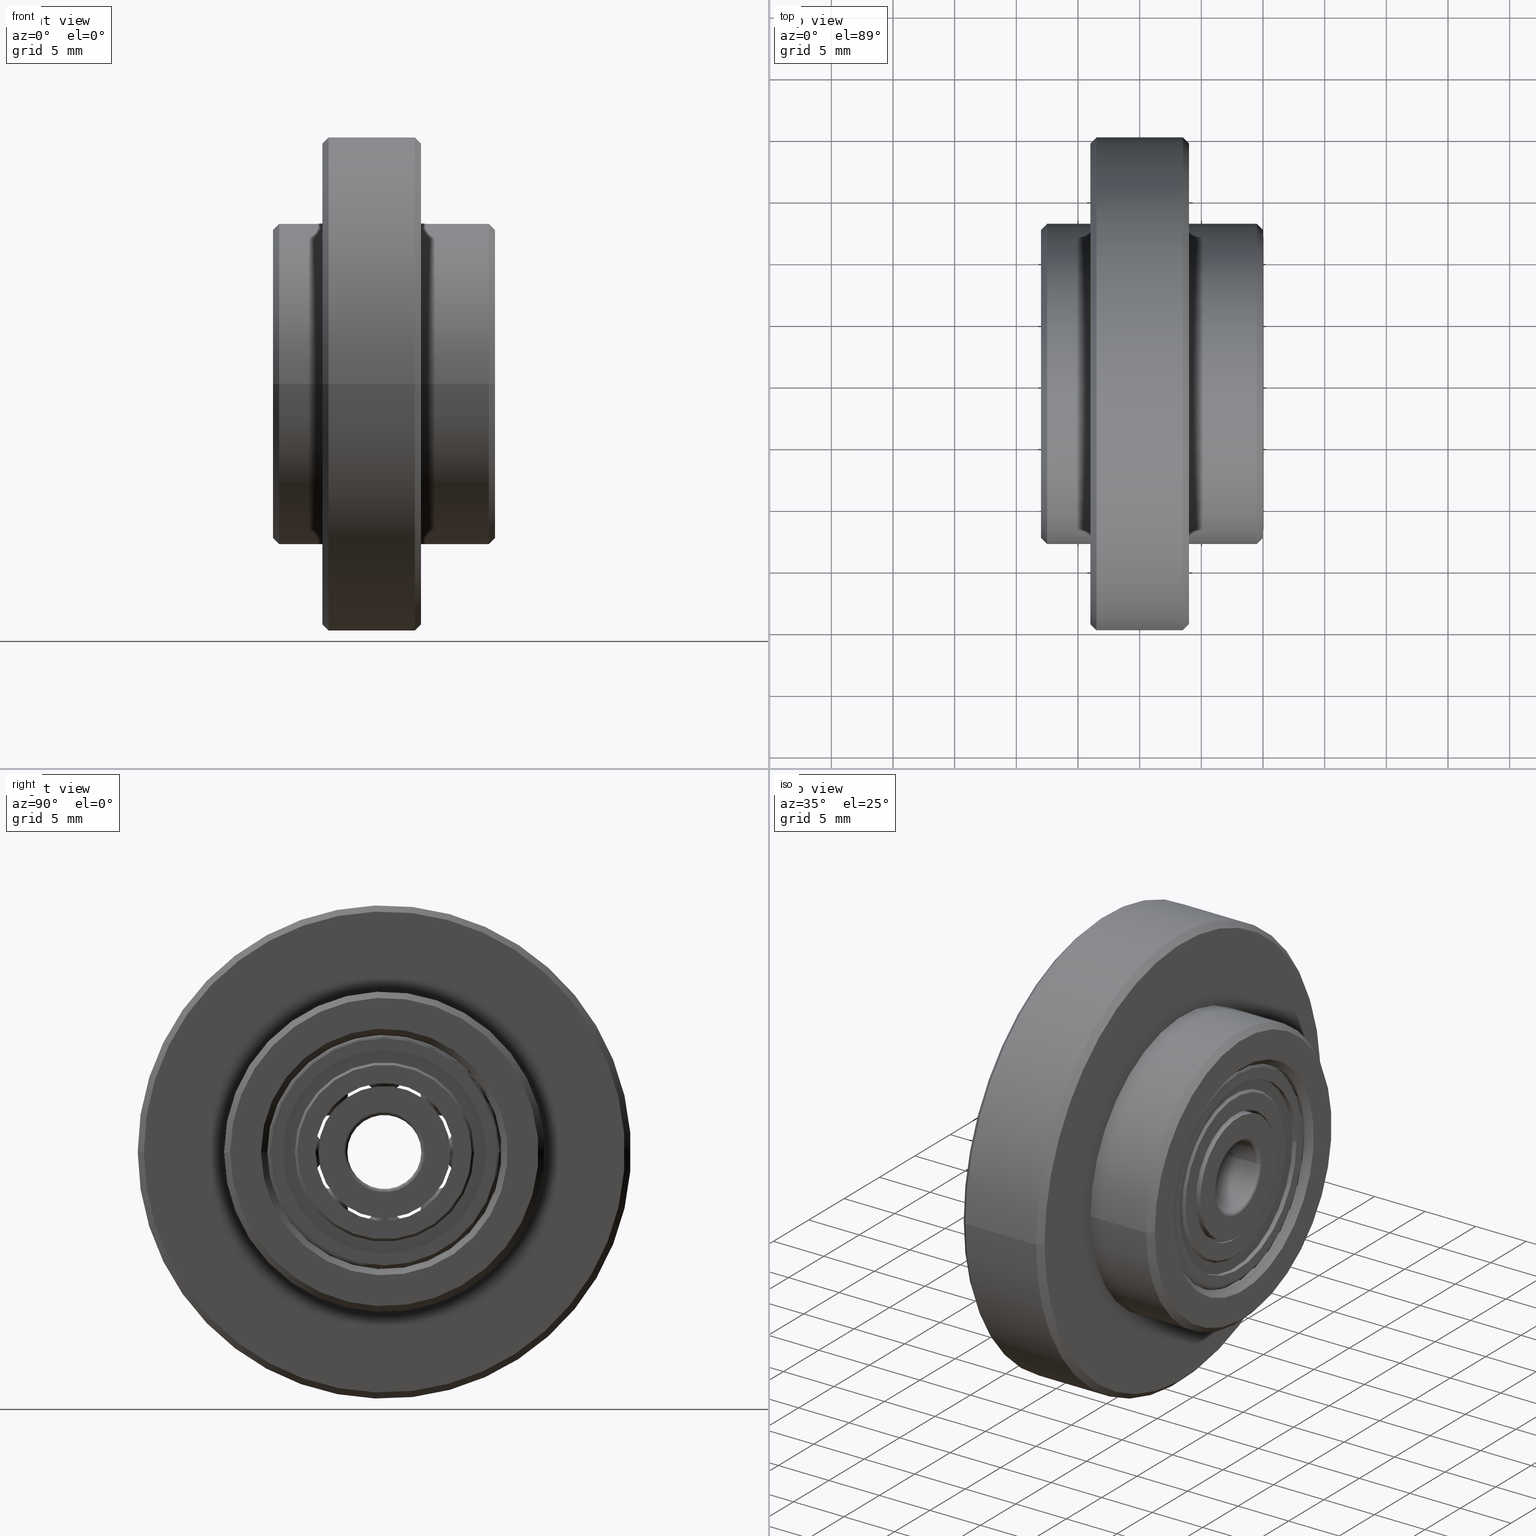
[diagram: canonical four-view strip — front | top / right | iso, engineering-drawing reading convention]
A machine part, canonical four-view strip (front | top / right | iso — engineering-drawing reading convention). The complete STEP part file that produces these views, byte-faithful:
ISO-10303-21;
HEADER;
/* Generated by software containing ST-Developer
 * from STEP Tools, Inc. (www.steptools.com) 
 */

FILE_DESCRIPTION(
/* description */ ('RUOTA NERA D.40 X SCORR. C/CUS.'),
/* implementation_level */ '2;1');

FILE_NAME(
/* name */ 'C:\\Users\\srubbiani.DR\\Desktop\\LAURA\\24.180.00.stp',
/* time_stamp */ '2014-08-05T14:07:43+02:00',
/* author */ ('srubbiani'),
/* organization */ (''),
/* preprocessor_version */ 'ST-DEVELOPER v15.2',
/* originating_system */ 'Autodesk Inventor 2014',
/* authorisation */ '');

FILE_SCHEMA (('AUTOMOTIVE_DESIGN { 1 0 10303 214 3 1 1 }'));
ENDSEC;

DATA;
#10=MECHANICAL_DESIGN_GEOMETRIC_PRESENTATION_REPRESENTATION('',(#47,#48,
#49,#50,#51,#52,#53,#54,#55,#56,#57,#58,#59,#60,#61,#62,#63,#64,#65,#66,
#67,#68,#69,#70,#46,#45),#1432);
#11=ITEM_DEFINED_TRANSFORMATION($,$,#799,#934);
#12=ITEM_DEFINED_TRANSFORMATION($,$,#836,#935);
#13=ITEM_DEFINED_TRANSFORMATION($,$,#836,#936);
#14=(
REPRESENTATION_RELATIONSHIP($,$,#1448,#1450)
REPRESENTATION_RELATIONSHIP_WITH_TRANSFORMATION(#11)
SHAPE_REPRESENTATION_RELATIONSHIP()
);
#15=(
REPRESENTATION_RELATIONSHIP($,$,#1449,#1450)
REPRESENTATION_RELATIONSHIP_WITH_TRANSFORMATION(#12)
SHAPE_REPRESENTATION_RELATIONSHIP()
);
#16=(
REPRESENTATION_RELATIONSHIP($,$,#1449,#1450)
REPRESENTATION_RELATIONSHIP_WITH_TRANSFORMATION(#13)
SHAPE_REPRESENTATION_RELATIONSHIP()
);
#17=CONTEXT_DEPENDENT_SHAPE_REPRESENTATION(#14,#1445);
#18=CONTEXT_DEPENDENT_SHAPE_REPRESENTATION(#15,#1446);
#19=CONTEXT_DEPENDENT_SHAPE_REPRESENTATION(#16,#1447);
#20=NEXT_ASSEMBLY_USAGE_OCCURRENCE('24.180.00:1',$,$,#1454,#1452,$);
#21=NEXT_ASSEMBLY_USAGE_OCCURRENCE('626-Z,6,19,6:1',$,$,#1454,#1453,$);
#22=NEXT_ASSEMBLY_USAGE_OCCURRENCE('626-Z,6,19,6:2',$,$,#1454,#1453,$);
#23=TOROIDAL_SURFACE('',#842,6.5,1.845);
#24=TOROIDAL_SURFACE('',#846,6.5,1.785);
#25=TOROIDAL_SURFACE('',#850,6.5,1.725);
#26=TOROIDAL_SURFACE('',#856,3.3,0.3);
#27=TOROIDAL_SURFACE('',#860,3.3,0.3);
#28=TOROIDAL_SURFACE('',#876,9.2,0.3);
#29=TOROIDAL_SURFACE('',#880,9.2,0.3);
#30=TOROIDAL_SURFACE('',#894,6.5,1.725);
#31=TOROIDAL_SURFACE('',#914,6.5,1.845);
#32=TOROIDAL_SURFACE('',#918,6.5,1.785);
#33=SPHERICAL_SURFACE('',#837,1.665);
#34=SPHERICAL_SURFACE('',#919,1.665);
#35=SPHERICAL_SURFACE('',#921,1.665);
#36=SPHERICAL_SURFACE('',#923,1.665);
#37=SPHERICAL_SURFACE('',#925,1.665);
#38=SPHERICAL_SURFACE('',#927,1.665);
#39=SPHERICAL_SURFACE('',#929,1.665);
#40=SPHERICAL_SURFACE('',#931,1.665);
#41=SHAPE_REPRESENTATION_RELATIONSHIP('SRR','None',#1448,#43);
#42=SHAPE_REPRESENTATION_RELATIONSHIP('SRR','None',#1449,#44);
#43=ADVANCED_BREP_SHAPE_REPRESENTATION($,(#785),#1429);
#44=ADVANCED_BREP_SHAPE_REPRESENTATION($,(#786,#787,#788,#789,#790,#791,
#792,#793,#794,#795,#796,#797,#798),#1430);
#45=STYLED_ITEM('',(#1467),#785);
#46=STYLED_ITEM('',(#1468),#723);
#47=STYLED_ITEM('',(#1469),#756);
#48=STYLED_ITEM('',(#1469),#757);
#49=STYLED_ITEM('',(#1469),#758);
#50=STYLED_ITEM('',(#1470),#761);
#51=STYLED_ITEM('',(#1468),#764);
#52=STYLED_ITEM('',(#1468),#765);
#53=STYLED_ITEM('',(#1468),#766);
#54=STYLED_ITEM('',(#1468),#767);
#55=STYLED_ITEM('',(#1468),#768);
#56=STYLED_ITEM('',(#1468),#769);
#57=STYLED_ITEM('',(#1468),#770);
#58=STYLED_ITEM('',(#1467),#786);
#59=STYLED_ITEM('',(#1467),#787);
#60=STYLED_ITEM('',(#1467),#788);
#61=STYLED_ITEM('',(#1467),#789);
#62=STYLED_ITEM('',(#1467),#790);
#63=STYLED_ITEM('',(#1467),#791);
#64=STYLED_ITEM('',(#1467),#792);
#65=STYLED_ITEM('',(#1467),#793);
#66=STYLED_ITEM('',(#1467),#794);
#67=STYLED_ITEM('',(#1467),#795);
#68=STYLED_ITEM('',(#1467),#796);
#69=STYLED_ITEM('',(#1467),#797);
#70=STYLED_ITEM('',(#1467),#798);
#71=CYLINDRICAL_SURFACE('',#805,12.999999999948);
#72=CYLINDRICAL_SURFACE('',#811,19.99999999992);
#73=CYLINDRICAL_SURFACE('',#817,12.999999999948);
#74=CYLINDRICAL_SURFACE('',#825,9.49999999996201);
#75=CYLINDRICAL_SURFACE('',#829,7.999999999968);
#76=CYLINDRICAL_SURFACE('',#833,9.49999999996201);
#77=CYLINDRICAL_SURFACE('',#839,5.925);
#78=CYLINDRICAL_SURFACE('',#844,7.075);
#79=CYLINDRICAL_SURFACE('',#847,5.35);
#80=CYLINDRICAL_SURFACE('',#852,5.35);
#81=CYLINDRICAL_SURFACE('',#858,3.);
#82=CYLINDRICAL_SURFACE('',#863,7.65);
#83=CYLINDRICAL_SURFACE('',#868,8.57);
#84=CYLINDRICAL_SURFACE('',#872,8.25);
#85=CYLINDRICAL_SURFACE('',#878,9.5);
#86=CYLINDRICAL_SURFACE('',#884,8.25);
#87=CYLINDRICAL_SURFACE('',#888,8.57);
#88=CYLINDRICAL_SURFACE('',#892,7.65);
#89=CYLINDRICAL_SURFACE('',#902,5.59);
#90=CYLINDRICAL_SURFACE('',#910,8.51);
#91=CYLINDRICAL_SURFACE('',#911,7.075);
#92=CYLINDRICAL_SURFACE('',#916,5.925);
#93=CONICAL_SURFACE('',#803,12.5499999999498,45.0000000000043);
#94=CONICAL_SURFACE('',#809,19.5499999999218,44.9999999999997);
#95=CONICAL_SURFACE('',#813,19.9499999999202,45.0000000000004);
#96=CONICAL_SURFACE('',#819,12.9499999999482,45.);
#97=CONICAL_SURFACE('',#823,9.94999999996016,45.0000000000001);
#98=CONICAL_SURFACE('',#835,9.5499999999618,45.0000000000021);
#99=CONICAL_SURFACE('',#898,7.09215728752538,44.9999999999998);
#100=CONICAL_SURFACE('',#906,7.175,45.0000000000001);
#101=FACE_BOUND('',#226,.T.);
#102=FACE_BOUND('',#228,.T.);
#103=FACE_BOUND('',#230,.T.);
#104=FACE_BOUND('',#232,.T.);
#105=FACE_BOUND('',#234,.T.);
#106=FACE_BOUND('',#236,.T.);
#107=FACE_BOUND('',#238,.T.);
#108=FACE_BOUND('',#240,.T.);
#109=FACE_BOUND('',#242,.T.);
#110=FACE_BOUND('',#244,.T.);
#111=FACE_BOUND('',#246,.T.);
#112=FACE_BOUND('',#248,.T.);
#113=FACE_BOUND('',#250,.T.);
#114=FACE_BOUND('',#252,.T.);
#115=FACE_BOUND('',#254,.T.);
#116=FACE_BOUND('',#256,.T.);
#117=FACE_BOUND('',#258,.T.);
#118=FACE_BOUND('',#260,.T.);
#119=FACE_BOUND('',#263,.T.);
#120=FACE_BOUND('',#265,.T.);
#121=FACE_BOUND('',#267,.T.);
#122=FACE_BOUND('',#269,.T.);
#123=FACE_BOUND('',#271,.T.);
#124=FACE_BOUND('',#273,.T.);
#125=FACE_BOUND('',#275,.T.);
#126=FACE_BOUND('',#276,.T.);
#127=FACE_BOUND('',#277,.T.);
#128=FACE_BOUND('',#279,.T.);
#129=FACE_BOUND('',#281,.T.);
#130=FACE_BOUND('',#283,.T.);
#131=FACE_BOUND('',#285,.T.);
#132=FACE_BOUND('',#287,.T.);
#133=FACE_BOUND('',#289,.T.);
#134=FACE_BOUND('',#291,.T.);
#135=FACE_BOUND('',#292,.T.);
#136=FACE_BOUND('',#293,.T.);
#137=FACE_BOUND('',#295,.T.);
#138=FACE_BOUND('',#297,.T.);
#139=FACE_BOUND('',#299,.T.);
#140=FACE_BOUND('',#301,.T.);
#141=FACE_BOUND('',#303,.T.);
#142=FACE_BOUND('',#304,.T.);
#143=FACE_BOUND('',#305,.T.);
#144=FACE_BOUND('',#307,.T.);
#145=FACE_BOUND('',#309,.T.);
#146=FACE_BOUND('',#311,.T.);
#147=FACE_BOUND('',#312,.T.);
#148=FACE_BOUND('',#313,.T.);
#149=FACE_BOUND('',#315,.T.);
#150=FACE_BOUND('',#317,.T.);
#151=FACE_BOUND('',#318,.T.);
#152=FACE_BOUND('',#319,.T.);
#153=FACE_BOUND('',#321,.T.);
#154=FACE_BOUND('',#322,.T.);
#155=FACE_BOUND('',#323,.T.);
#156=FACE_BOUND('',#325,.T.);
#157=FACE_BOUND('',#327,.T.);
#158=FACE_BOUND('',#329,.T.);
#159=FACE_BOUND('',#331,.T.);
#160=FACE_BOUND('',#333,.T.);
#161=FACE_BOUND('',#335,.T.);
#162=FACE_BOUND('',#337,.T.);
#163=FACE_BOUND('',#339,.T.);
#164=FACE_BOUND('',#341,.T.);
#165=FACE_OUTER_BOUND('',#225,.T.);
#166=FACE_OUTER_BOUND('',#227,.T.);
#167=FACE_OUTER_BOUND('',#229,.T.);
#168=FACE_OUTER_BOUND('',#231,.T.);
#169=FACE_OUTER_BOUND('',#233,.T.);
#170=FACE_OUTER_BOUND('',#235,.T.);
#171=FACE_OUTER_BOUND('',#237,.T.);
#172=FACE_OUTER_BOUND('',#239,.T.);
#173=FACE_OUTER_BOUND('',#241,.T.);
#174=FACE_OUTER_BOUND('',#243,.T.);
#175=FACE_OUTER_BOUND('',#245,.T.);
#176=FACE_OUTER_BOUND('',#247,.T.);
#177=FACE_OUTER_BOUND('',#249,.T.);
#178=FACE_OUTER_BOUND('',#251,.T.);
#179=FACE_OUTER_BOUND('',#253,.T.);
#180=FACE_OUTER_BOUND('',#255,.T.);
#181=FACE_OUTER_BOUND('',#257,.T.);
#182=FACE_OUTER_BOUND('',#259,.T.);
#183=FACE_OUTER_BOUND('',#261,.T.);
#184=FACE_OUTER_BOUND('',#262,.T.);
#185=FACE_OUTER_BOUND('',#264,.T.);
#186=FACE_OUTER_BOUND('',#266,.T.);
#187=FACE_OUTER_BOUND('',#268,.T.);
#188=FACE_OUTER_BOUND('',#270,.T.);
#189=FACE_OUTER_BOUND('',#272,.T.);
#190=FACE_OUTER_BOUND('',#274,.T.);
#191=FACE_OUTER_BOUND('',#278,.T.);
#192=FACE_OUTER_BOUND('',#280,.T.);
#193=FACE_OUTER_BOUND('',#282,.T.);
#194=FACE_OUTER_BOUND('',#284,.T.);
#195=FACE_OUTER_BOUND('',#286,.T.);
#196=FACE_OUTER_BOUND('',#288,.T.);
#197=FACE_OUTER_BOUND('',#290,.T.);
#198=FACE_OUTER_BOUND('',#294,.T.);
#199=FACE_OUTER_BOUND('',#296,.T.);
#200=FACE_OUTER_BOUND('',#298,.T.);
#201=FACE_OUTER_BOUND('',#300,.T.);
#202=FACE_OUTER_BOUND('',#302,.T.);
#203=FACE_OUTER_BOUND('',#306,.T.);
#204=FACE_OUTER_BOUND('',#308,.T.);
#205=FACE_OUTER_BOUND('',#310,.T.);
#206=FACE_OUTER_BOUND('',#314,.T.);
#207=FACE_OUTER_BOUND('',#316,.T.);
#208=FACE_OUTER_BOUND('',#320,.T.);
#209=FACE_OUTER_BOUND('',#324,.T.);
#210=FACE_OUTER_BOUND('',#326,.T.);
#211=FACE_OUTER_BOUND('',#328,.T.);
#212=FACE_OUTER_BOUND('',#330,.T.);
#213=FACE_OUTER_BOUND('',#332,.T.);
#214=FACE_OUTER_BOUND('',#334,.T.);
#215=FACE_OUTER_BOUND('',#336,.T.);
#216=FACE_OUTER_BOUND('',#338,.T.);
#217=FACE_OUTER_BOUND('',#340,.T.);
#218=FACE_OUTER_BOUND('',#342,.T.);
#219=FACE_OUTER_BOUND('',#343,.T.);
#220=FACE_OUTER_BOUND('',#344,.T.);
#221=FACE_OUTER_BOUND('',#345,.T.);
#222=FACE_OUTER_BOUND('',#346,.T.);
#223=FACE_OUTER_BOUND('',#347,.T.);
#224=FACE_OUTER_BOUND('',#348,.T.);
#225=EDGE_LOOP('',(#555));
#226=EDGE_LOOP('',(#556));
#227=EDGE_LOOP('',(#557));
#228=EDGE_LOOP('',(#558));
#229=EDGE_LOOP('',(#559));
#230=EDGE_LOOP('',(#560));
#231=EDGE_LOOP('',(#561));
#232=EDGE_LOOP('',(#562));
#233=EDGE_LOOP('',(#563));
#234=EDGE_LOOP('',(#564));
#235=EDGE_LOOP('',(#565));
#236=EDGE_LOOP('',(#566));
#237=EDGE_LOOP('',(#567));
#238=EDGE_LOOP('',(#568));
#239=EDGE_LOOP('',(#569));
#240=EDGE_LOOP('',(#570));
#241=EDGE_LOOP('',(#571));
#242=EDGE_LOOP('',(#572));
#243=EDGE_LOOP('',(#573));
#244=EDGE_LOOP('',(#574));
#245=EDGE_LOOP('',(#575));
#246=EDGE_LOOP('',(#576));
#247=EDGE_LOOP('',(#577));
#248=EDGE_LOOP('',(#578));
#249=EDGE_LOOP('',(#579));
#250=EDGE_LOOP('',(#580));
#251=EDGE_LOOP('',(#581));
#252=EDGE_LOOP('',(#582));
#253=EDGE_LOOP('',(#583));
#254=EDGE_LOOP('',(#584));
#255=EDGE_LOOP('',(#585));
#256=EDGE_LOOP('',(#586));
#257=EDGE_LOOP('',(#587));
#258=EDGE_LOOP('',(#588));
#259=EDGE_LOOP('',(#589));
#260=EDGE_LOOP('',(#590));
#261=EDGE_LOOP('',(#591,#592));
#262=EDGE_LOOP('',(#593));
#263=EDGE_LOOP('',(#594));
#264=EDGE_LOOP('',(#595));
#265=EDGE_LOOP('',(#596));
#266=EDGE_LOOP('',(#597));
#267=EDGE_LOOP('',(#598));
#268=EDGE_LOOP('',(#599));
#269=EDGE_LOOP('',(#600));
#270=EDGE_LOOP('',(#601));
#271=EDGE_LOOP('',(#602));
#272=EDGE_LOOP('',(#603));
#273=EDGE_LOOP('',(#604));
#274=EDGE_LOOP('',(#605));
#275=EDGE_LOOP('',(#606));
#276=EDGE_LOOP('',(#607));
#277=EDGE_LOOP('',(#608));
#278=EDGE_LOOP('',(#609));
#279=EDGE_LOOP('',(#610));
#280=EDGE_LOOP('',(#611));
#281=EDGE_LOOP('',(#612));
#282=EDGE_LOOP('',(#613));
#283=EDGE_LOOP('',(#614));
#284=EDGE_LOOP('',(#615));
#285=EDGE_LOOP('',(#616));
#286=EDGE_LOOP('',(#617));
#287=EDGE_LOOP('',(#618));
#288=EDGE_LOOP('',(#619));
#289=EDGE_LOOP('',(#620));
#290=EDGE_LOOP('',(#621));
#291=EDGE_LOOP('',(#622));
#292=EDGE_LOOP('',(#623));
#293=EDGE_LOOP('',(#624));
#294=EDGE_LOOP('',(#625));
#295=EDGE_LOOP('',(#626));
#296=EDGE_LOOP('',(#627));
#297=EDGE_LOOP('',(#628));
#298=EDGE_LOOP('',(#629));
#299=EDGE_LOOP('',(#630));
#300=EDGE_LOOP('',(#631));
#301=EDGE_LOOP('',(#632));
#302=EDGE_LOOP('',(#633));
#303=EDGE_LOOP('',(#634));
#304=EDGE_LOOP('',(#635));
#305=EDGE_LOOP('',(#636));
#306=EDGE_LOOP('',(#637));
#307=EDGE_LOOP('',(#638));
#308=EDGE_LOOP('',(#639));
#309=EDGE_LOOP('',(#640));
#310=EDGE_LOOP('',(#641));
#311=EDGE_LOOP('',(#642));
#312=EDGE_LOOP('',(#643));
#313=EDGE_LOOP('',(#644));
#314=EDGE_LOOP('',(#645));
#315=EDGE_LOOP('',(#646));
#316=EDGE_LOOP('',(#647));
#317=EDGE_LOOP('',(#648));
#318=EDGE_LOOP('',(#649));
#319=EDGE_LOOP('',(#650));
#320=EDGE_LOOP('',(#651));
#321=EDGE_LOOP('',(#652));
#322=EDGE_LOOP('',(#653));
#323=EDGE_LOOP('',(#654));
#324=EDGE_LOOP('',(#655));
#325=EDGE_LOOP('',(#656));
#326=EDGE_LOOP('',(#657));
#327=EDGE_LOOP('',(#658));
#328=EDGE_LOOP('',(#659));
#329=EDGE_LOOP('',(#660));
#330=EDGE_LOOP('',(#661));
#331=EDGE_LOOP('',(#662));
#332=EDGE_LOOP('',(#663));
#333=EDGE_LOOP('',(#664));
#334=EDGE_LOOP('',(#665));
#335=EDGE_LOOP('',(#666));
#336=EDGE_LOOP('',(#667));
#337=EDGE_LOOP('',(#668));
#338=EDGE_LOOP('',(#669));
#339=EDGE_LOOP('',(#670));
#340=EDGE_LOOP('',(#671));
#341=EDGE_LOOP('',(#672));
#342=EDGE_LOOP('',(#673,#674));
#343=EDGE_LOOP('',(#675,#676));
#344=EDGE_LOOP('',(#677,#678));
#345=EDGE_LOOP('',(#679,#680));
#346=EDGE_LOOP('',(#681,#682));
#347=EDGE_LOOP('',(#683,#684));
#348=EDGE_LOOP('',(#685,#686));
#349=CIRCLE('',#801,12.49999999995);
#350=CIRCLE('',#802,9.99999999996);
#351=CIRCLE('',#804,12.999999999948);
#352=CIRCLE('',#806,12.999999999948);
#353=CIRCLE('',#808,19.499999999922);
#354=CIRCLE('',#810,19.99999999992);
#355=CIRCLE('',#812,19.99999999992);
#356=CIRCLE('',#814,19.499999999922);
#357=CIRCLE('',#816,12.999999999948);
#358=CIRCLE('',#818,12.999999999948);
#359=CIRCLE('',#820,12.49999999995);
#360=CIRCLE('',#822,9.99999999995997);
#361=CIRCLE('',#824,9.49999999996201);
#362=CIRCLE('',#826,9.49999999996201);
#363=CIRCLE('',#828,7.999999999968);
#364=CIRCLE('',#830,7.999999999968);
#365=CIRCLE('',#832,9.49999999996201);
#366=CIRCLE('',#834,9.49999999996201);
#367=CIRCLE('',#838,1.665);
#368=CIRCLE('',#840,5.925);
#369=CIRCLE('',#841,5.925);
#370=CIRCLE('',#843,7.075);
#371=CIRCLE('',#845,7.075);
#372=CIRCLE('',#848,5.35);
#373=CIRCLE('',#849,5.35);
#374=CIRCLE('',#851,5.35);
#375=CIRCLE('',#853,5.35);
#376=CIRCLE('',#855,3.3);
#377=CIRCLE('',#857,3.);
#378=CIRCLE('',#859,3.);
#379=CIRCLE('',#861,3.3);
#380=CIRCLE('',#864,7.65);
#381=CIRCLE('',#865,7.65);
#382=CIRCLE('',#867,8.57);
#383=CIRCLE('',#869,8.57);
#384=CIRCLE('',#871,8.25);
#385=CIRCLE('',#873,8.25);
#386=CIRCLE('',#875,9.2);
#387=CIRCLE('',#877,9.5);
#388=CIRCLE('',#879,9.5);
#389=CIRCLE('',#881,9.2);
#390=CIRCLE('',#883,8.25);
#391=CIRCLE('',#885,8.25);
#392=CIRCLE('',#887,8.57);
#393=CIRCLE('',#889,8.57);
#394=CIRCLE('',#891,7.65);
#395=CIRCLE('',#893,7.65);
#396=CIRCLE('',#896,7.19215728752538);
#397=CIRCLE('',#897,8.51);
#398=CIRCLE('',#899,6.99215728752538);
#399=CIRCLE('',#901,5.59);
#400=CIRCLE('',#903,5.59);
#401=CIRCLE('',#905,7.075);
#402=CIRCLE('',#907,7.275);
#403=CIRCLE('',#909,8.51);
#404=CIRCLE('',#912,7.075);
#405=CIRCLE('',#913,7.075);
#406=CIRCLE('',#915,5.925);
#407=CIRCLE('',#917,5.925);
#408=CIRCLE('',#920,1.665);
#409=CIRCLE('',#922,1.665);
#410=CIRCLE('',#924,1.665);
#411=CIRCLE('',#926,1.665);
#412=CIRCLE('',#928,1.665);
#413=CIRCLE('',#930,1.665);
#414=CIRCLE('',#932,1.665);
#415=VERTEX_POINT('',#1215);
#416=VERTEX_POINT('',#1217);
#417=VERTEX_POINT('',#1220);
#418=VERTEX_POINT('',#1223);
#419=VERTEX_POINT('',#1226);
#420=VERTEX_POINT('',#1229);
#421=VERTEX_POINT('',#1232);
#422=VERTEX_POINT('',#1235);
#423=VERTEX_POINT('',#1238);
#424=VERTEX_POINT('',#1241);
#425=VERTEX_POINT('',#1244);
#426=VERTEX_POINT('',#1247);
#427=VERTEX_POINT('',#1250);
#428=VERTEX_POINT('',#1253);
#429=VERTEX_POINT('',#1256);
#430=VERTEX_POINT('',#1259);
#431=VERTEX_POINT('',#1262);
#432=VERTEX_POINT('',#1265);
#433=VERTEX_POINT('',#1271);
#434=VERTEX_POINT('',#1272);
#435=VERTEX_POINT('',#1274);
#436=VERTEX_POINT('',#1276);
#437=VERTEX_POINT('',#1279);
#438=VERTEX_POINT('',#1282);
#439=VERTEX_POINT('',#1286);
#440=VERTEX_POINT('',#1288);
#441=VERTEX_POINT('',#1291);
#442=VERTEX_POINT('',#1294);
#443=VERTEX_POINT('',#1297);
#444=VERTEX_POINT('',#1300);
#445=VERTEX_POINT('',#1303);
#446=VERTEX_POINT('',#1306);
#447=VERTEX_POINT('',#1310);
#448=VERTEX_POINT('',#1312);
#449=VERTEX_POINT('',#1315);
#450=VERTEX_POINT('',#1318);
#451=VERTEX_POINT('',#1321);
#452=VERTEX_POINT('',#1324);
#453=VERTEX_POINT('',#1327);
#454=VERTEX_POINT('',#1330);
#455=VERTEX_POINT('',#1333);
#456=VERTEX_POINT('',#1336);
#457=VERTEX_POINT('',#1339);
#458=VERTEX_POINT('',#1342);
#459=VERTEX_POINT('',#1345);
#460=VERTEX_POINT('',#1348);
#461=VERTEX_POINT('',#1351);
#462=VERTEX_POINT('',#1354);
#463=VERTEX_POINT('',#1358);
#464=VERTEX_POINT('',#1360);
#465=VERTEX_POINT('',#1363);
#466=VERTEX_POINT('',#1366);
#467=VERTEX_POINT('',#1369);
#468=VERTEX_POINT('',#1372);
#469=VERTEX_POINT('',#1375);
#470=VERTEX_POINT('',#1378);
#471=VERTEX_POINT('',#1382);
#472=VERTEX_POINT('',#1384);
#473=VERTEX_POINT('',#1387);
#474=VERTEX_POINT('',#1390);
#475=VERTEX_POINT('',#1395);
#476=VERTEX_POINT('',#1396);
#477=VERTEX_POINT('',#1399);
#478=VERTEX_POINT('',#1400);
#479=VERTEX_POINT('',#1403);
#480=VERTEX_POINT('',#1404);
#481=VERTEX_POINT('',#1407);
#482=VERTEX_POINT('',#1408);
#483=VERTEX_POINT('',#1411);
#484=VERTEX_POINT('',#1412);
#485=VERTEX_POINT('',#1415);
#486=VERTEX_POINT('',#1416);
#487=VERTEX_POINT('',#1419);
#488=VERTEX_POINT('',#1420);
#489=EDGE_CURVE('',#415,#415,#349,.T.);
#490=EDGE_CURVE('',#416,#416,#350,.T.);
#491=EDGE_CURVE('',#417,#417,#351,.T.);
#492=EDGE_CURVE('',#418,#418,#352,.T.);
#493=EDGE_CURVE('',#419,#419,#353,.T.);
#494=EDGE_CURVE('',#420,#420,#354,.T.);
#495=EDGE_CURVE('',#421,#421,#355,.T.);
#496=EDGE_CURVE('',#422,#422,#356,.T.);
#497=EDGE_CURVE('',#423,#423,#357,.T.);
#498=EDGE_CURVE('',#424,#424,#358,.T.);
#499=EDGE_CURVE('',#425,#425,#359,.T.);
#500=EDGE_CURVE('',#426,#426,#360,.T.);
#501=EDGE_CURVE('',#427,#427,#361,.T.);
#502=EDGE_CURVE('',#428,#428,#362,.T.);
#503=EDGE_CURVE('',#429,#429,#363,.T.);
#504=EDGE_CURVE('',#430,#430,#364,.T.);
#505=EDGE_CURVE('',#431,#431,#365,.T.);
#506=EDGE_CURVE('',#432,#432,#366,.T.);
#507=EDGE_CURVE('',#433,#434,#367,.T.);
#508=EDGE_CURVE('',#435,#435,#368,.T.);
#509=EDGE_CURVE('',#436,#436,#369,.T.);
#510=EDGE_CURVE('',#437,#437,#370,.T.);
#511=EDGE_CURVE('',#438,#438,#371,.T.);
#512=EDGE_CURVE('',#439,#439,#372,.T.);
#513=EDGE_CURVE('',#440,#440,#373,.T.);
#514=EDGE_CURVE('',#441,#441,#374,.T.);
#515=EDGE_CURVE('',#442,#442,#375,.T.);
#516=EDGE_CURVE('',#443,#443,#376,.T.);
#517=EDGE_CURVE('',#444,#444,#377,.T.);
#518=EDGE_CURVE('',#445,#445,#378,.T.);
#519=EDGE_CURVE('',#446,#446,#379,.T.);
#520=EDGE_CURVE('',#447,#447,#380,.T.);
#521=EDGE_CURVE('',#448,#448,#381,.T.);
#522=EDGE_CURVE('',#449,#449,#382,.T.);
#523=EDGE_CURVE('',#450,#450,#383,.T.);
#524=EDGE_CURVE('',#451,#451,#384,.T.);
#525=EDGE_CURVE('',#452,#452,#385,.T.);
#526=EDGE_CURVE('',#453,#453,#386,.T.);
#527=EDGE_CURVE('',#454,#454,#387,.T.);
#528=EDGE_CURVE('',#455,#455,#388,.T.);
#529=EDGE_CURVE('',#456,#456,#389,.T.);
#530=EDGE_CURVE('',#457,#457,#390,.T.);
#531=EDGE_CURVE('',#458,#458,#391,.T.);
#532=EDGE_CURVE('',#459,#459,#392,.T.);
#533=EDGE_CURVE('',#460,#460,#393,.T.);
#534=EDGE_CURVE('',#461,#461,#394,.T.);
#535=EDGE_CURVE('',#462,#462,#395,.T.);
#536=EDGE_CURVE('',#463,#463,#396,.T.);
#537=EDGE_CURVE('',#464,#464,#397,.T.);
#538=EDGE_CURVE('',#465,#465,#398,.T.);
#539=EDGE_CURVE('',#466,#466,#399,.T.);
#540=EDGE_CURVE('',#467,#467,#400,.T.);
#541=EDGE_CURVE('',#468,#468,#401,.T.);
#542=EDGE_CURVE('',#469,#469,#402,.T.);
#543=EDGE_CURVE('',#470,#470,#403,.T.);
#544=EDGE_CURVE('',#471,#471,#404,.T.);
#545=EDGE_CURVE('',#472,#472,#405,.T.);
#546=EDGE_CURVE('',#473,#473,#406,.T.);
#547=EDGE_CURVE('',#474,#474,#407,.T.);
#548=EDGE_CURVE('',#475,#476,#408,.T.);
#549=EDGE_CURVE('',#477,#478,#409,.T.);
#550=EDGE_CURVE('',#479,#480,#410,.T.);
#551=EDGE_CURVE('',#481,#482,#411,.T.);
#552=EDGE_CURVE('',#483,#484,#412,.T.);
#553=EDGE_CURVE('',#485,#486,#413,.T.);
#554=EDGE_CURVE('',#487,#488,#414,.T.);
#555=ORIENTED_EDGE('',*,*,#489,.T.);
#556=ORIENTED_EDGE('',*,*,#490,.F.);
#557=ORIENTED_EDGE('',*,*,#491,.T.);
#558=ORIENTED_EDGE('',*,*,#489,.F.);
#559=ORIENTED_EDGE('',*,*,#492,.T.);
#560=ORIENTED_EDGE('',*,*,#491,.F.);
#561=ORIENTED_EDGE('',*,*,#493,.T.);
#562=ORIENTED_EDGE('',*,*,#492,.F.);
#563=ORIENTED_EDGE('',*,*,#494,.T.);
#564=ORIENTED_EDGE('',*,*,#493,.F.);
#565=ORIENTED_EDGE('',*,*,#495,.T.);
#566=ORIENTED_EDGE('',*,*,#494,.F.);
#567=ORIENTED_EDGE('',*,*,#496,.T.);
#568=ORIENTED_EDGE('',*,*,#495,.F.);
#569=ORIENTED_EDGE('',*,*,#496,.F.);
#570=ORIENTED_EDGE('',*,*,#497,.T.);
#571=ORIENTED_EDGE('',*,*,#498,.T.);
#572=ORIENTED_EDGE('',*,*,#497,.F.);
#573=ORIENTED_EDGE('',*,*,#499,.T.);
#574=ORIENTED_EDGE('',*,*,#498,.F.);
#575=ORIENTED_EDGE('',*,*,#499,.F.);
#576=ORIENTED_EDGE('',*,*,#500,.T.);
#577=ORIENTED_EDGE('',*,*,#501,.T.);
#578=ORIENTED_EDGE('',*,*,#500,.F.);
#579=ORIENTED_EDGE('',*,*,#502,.T.);
#580=ORIENTED_EDGE('',*,*,#501,.F.);
#581=ORIENTED_EDGE('',*,*,#502,.F.);
#582=ORIENTED_EDGE('',*,*,#503,.T.);
#583=ORIENTED_EDGE('',*,*,#504,.T.);
#584=ORIENTED_EDGE('',*,*,#503,.F.);
#585=ORIENTED_EDGE('',*,*,#505,.T.);
#586=ORIENTED_EDGE('',*,*,#504,.F.);
#587=ORIENTED_EDGE('',*,*,#506,.T.);
#588=ORIENTED_EDGE('',*,*,#505,.F.);
#589=ORIENTED_EDGE('',*,*,#490,.T.);
#590=ORIENTED_EDGE('',*,*,#506,.F.);
#591=ORIENTED_EDGE('',*,*,#507,.T.);
#592=ORIENTED_EDGE('',*,*,#507,.F.);
#593=ORIENTED_EDGE('',*,*,#508,.F.);
#594=ORIENTED_EDGE('',*,*,#509,.T.);
#595=ORIENTED_EDGE('',*,*,#510,.F.);
#596=ORIENTED_EDGE('',*,*,#508,.T.);
#597=ORIENTED_EDGE('',*,*,#511,.F.);
#598=ORIENTED_EDGE('',*,*,#510,.T.);
#599=ORIENTED_EDGE('',*,*,#509,.F.);
#600=ORIENTED_EDGE('',*,*,#511,.T.);
#601=ORIENTED_EDGE('',*,*,#512,.F.);
#602=ORIENTED_EDGE('',*,*,#513,.T.);
#603=ORIENTED_EDGE('',*,*,#514,.F.);
#604=ORIENTED_EDGE('',*,*,#512,.T.);
#605=ORIENTED_EDGE('',*,*,#515,.F.);
#606=ORIENTED_EDGE('',*,*,#514,.T.);
#607=ORIENTED_EDGE('',*,*,#516,.F.);
#608=ORIENTED_EDGE('',*,*,#515,.T.);
#609=ORIENTED_EDGE('',*,*,#517,.F.);
#610=ORIENTED_EDGE('',*,*,#516,.T.);
#611=ORIENTED_EDGE('',*,*,#518,.F.);
#612=ORIENTED_EDGE('',*,*,#517,.T.);
#613=ORIENTED_EDGE('',*,*,#519,.F.);
#614=ORIENTED_EDGE('',*,*,#518,.T.);
#615=ORIENTED_EDGE('',*,*,#513,.F.);
#616=ORIENTED_EDGE('',*,*,#519,.T.);
#617=ORIENTED_EDGE('',*,*,#520,.F.);
#618=ORIENTED_EDGE('',*,*,#521,.T.);
#619=ORIENTED_EDGE('',*,*,#522,.F.);
#620=ORIENTED_EDGE('',*,*,#520,.T.);
#621=ORIENTED_EDGE('',*,*,#523,.F.);
#622=ORIENTED_EDGE('',*,*,#522,.T.);
#623=ORIENTED_EDGE('',*,*,#524,.F.);
#624=ORIENTED_EDGE('',*,*,#523,.T.);
#625=ORIENTED_EDGE('',*,*,#525,.F.);
#626=ORIENTED_EDGE('',*,*,#524,.T.);
#627=ORIENTED_EDGE('',*,*,#526,.F.);
#628=ORIENTED_EDGE('',*,*,#525,.T.);
#629=ORIENTED_EDGE('',*,*,#527,.F.);
#630=ORIENTED_EDGE('',*,*,#526,.T.);
#631=ORIENTED_EDGE('',*,*,#528,.F.);
#632=ORIENTED_EDGE('',*,*,#527,.T.);
#633=ORIENTED_EDGE('',*,*,#529,.F.);
#634=ORIENTED_EDGE('',*,*,#528,.T.);
#635=ORIENTED_EDGE('',*,*,#530,.F.);
#636=ORIENTED_EDGE('',*,*,#529,.T.);
#637=ORIENTED_EDGE('',*,*,#531,.F.);
#638=ORIENTED_EDGE('',*,*,#530,.T.);
#639=ORIENTED_EDGE('',*,*,#532,.F.);
#640=ORIENTED_EDGE('',*,*,#531,.T.);
#641=ORIENTED_EDGE('',*,*,#533,.F.);
#642=ORIENTED_EDGE('',*,*,#532,.T.);
#643=ORIENTED_EDGE('',*,*,#534,.F.);
#644=ORIENTED_EDGE('',*,*,#533,.T.);
#645=ORIENTED_EDGE('',*,*,#535,.F.);
#646=ORIENTED_EDGE('',*,*,#534,.T.);
#647=ORIENTED_EDGE('',*,*,#521,.F.);
#648=ORIENTED_EDGE('',*,*,#535,.T.);
#649=ORIENTED_EDGE('',*,*,#536,.F.);
#650=ORIENTED_EDGE('',*,*,#537,.T.);
#651=ORIENTED_EDGE('',*,*,#538,.F.);
#652=ORIENTED_EDGE('',*,*,#536,.T.);
#653=ORIENTED_EDGE('',*,*,#539,.F.);
#654=ORIENTED_EDGE('',*,*,#538,.T.);
#655=ORIENTED_EDGE('',*,*,#540,.F.);
#656=ORIENTED_EDGE('',*,*,#539,.T.);
#657=ORIENTED_EDGE('',*,*,#541,.F.);
#658=ORIENTED_EDGE('',*,*,#540,.T.);
#659=ORIENTED_EDGE('',*,*,#542,.F.);
#660=ORIENTED_EDGE('',*,*,#541,.T.);
#661=ORIENTED_EDGE('',*,*,#543,.F.);
#662=ORIENTED_EDGE('',*,*,#542,.T.);
#663=ORIENTED_EDGE('',*,*,#537,.F.);
#664=ORIENTED_EDGE('',*,*,#543,.T.);
#665=ORIENTED_EDGE('',*,*,#544,.F.);
#666=ORIENTED_EDGE('',*,*,#545,.T.);
#667=ORIENTED_EDGE('',*,*,#546,.F.);
#668=ORIENTED_EDGE('',*,*,#544,.T.);
#669=ORIENTED_EDGE('',*,*,#547,.F.);
#670=ORIENTED_EDGE('',*,*,#546,.T.);
#671=ORIENTED_EDGE('',*,*,#545,.F.);
#672=ORIENTED_EDGE('',*,*,#547,.T.);
#673=ORIENTED_EDGE('',*,*,#548,.T.);
#674=ORIENTED_EDGE('',*,*,#548,.F.);
#675=ORIENTED_EDGE('',*,*,#549,.T.);
#676=ORIENTED_EDGE('',*,*,#549,.F.);
#677=ORIENTED_EDGE('',*,*,#550,.T.);
#678=ORIENTED_EDGE('',*,*,#550,.F.);
#679=ORIENTED_EDGE('',*,*,#551,.T.);
#680=ORIENTED_EDGE('',*,*,#551,.F.);
#681=ORIENTED_EDGE('',*,*,#552,.T.);
#682=ORIENTED_EDGE('',*,*,#552,.F.);
#683=ORIENTED_EDGE('',*,*,#553,.T.);
#684=ORIENTED_EDGE('',*,*,#553,.F.);
#685=ORIENTED_EDGE('',*,*,#554,.T.);
#686=ORIENTED_EDGE('',*,*,#554,.F.);
#687=PLANE('',#800);
#688=PLANE('',#807);
#689=PLANE('',#815);
#690=PLANE('',#821);
#691=PLANE('',#827);
#692=PLANE('',#831);
#693=PLANE('',#854);
#694=PLANE('',#862);
#695=PLANE('',#866);
#696=PLANE('',#870);
#697=PLANE('',#874);
#698=PLANE('',#882);
#699=PLANE('',#886);
#700=PLANE('',#890);
#701=PLANE('',#895);
#702=PLANE('',#900);
#703=PLANE('',#904);
#704=PLANE('',#908);
#705=ADVANCED_FACE('',(#165,#101),#687,.F.);
#706=ADVANCED_FACE('',(#166,#102),#93,.T.);
#707=ADVANCED_FACE('',(#167,#103),#71,.T.);
#708=ADVANCED_FACE('',(#168,#104),#688,.F.);
#709=ADVANCED_FACE('',(#169,#105),#94,.T.);
#710=ADVANCED_FACE('',(#170,#106),#72,.T.);
#711=ADVANCED_FACE('',(#171,#107),#95,.T.);
#712=ADVANCED_FACE('',(#172,#108),#689,.F.);
#713=ADVANCED_FACE('',(#173,#109),#73,.T.);
#714=ADVANCED_FACE('',(#174,#110),#96,.T.);
#715=ADVANCED_FACE('',(#175,#111),#690,.F.);
#716=ADVANCED_FACE('',(#176,#112),#97,.F.);
#717=ADVANCED_FACE('',(#177,#113),#74,.F.);
#718=ADVANCED_FACE('',(#178,#114),#691,.F.);
#719=ADVANCED_FACE('',(#179,#115),#75,.F.);
#720=ADVANCED_FACE('',(#180,#116),#692,.F.);
#721=ADVANCED_FACE('',(#181,#117),#76,.F.);
#722=ADVANCED_FACE('',(#182,#118),#98,.F.);
#723=ADVANCED_FACE('',(#183),#33,.T.);
#724=ADVANCED_FACE('',(#184,#119),#77,.F.);
#725=ADVANCED_FACE('',(#185,#120),#23,.T.);
#726=ADVANCED_FACE('',(#186,#121),#78,.T.);
#727=ADVANCED_FACE('',(#187,#122),#24,.F.);
#728=ADVANCED_FACE('',(#188,#123),#79,.T.);
#729=ADVANCED_FACE('',(#189,#124),#25,.F.);
#730=ADVANCED_FACE('',(#190,#125),#80,.T.);
#731=ADVANCED_FACE('',(#126,#127),#693,.T.);
#732=ADVANCED_FACE('',(#191,#128),#26,.T.);
#733=ADVANCED_FACE('',(#192,#129),#81,.F.);
#734=ADVANCED_FACE('',(#193,#130),#27,.T.);
#735=ADVANCED_FACE('',(#194,#131),#694,.T.);
#736=ADVANCED_FACE('',(#195,#132),#82,.F.);
#737=ADVANCED_FACE('',(#196,#133),#695,.T.);
#738=ADVANCED_FACE('',(#197,#134),#83,.F.);
#739=ADVANCED_FACE('',(#135,#136),#696,.T.);
#740=ADVANCED_FACE('',(#198,#137),#84,.F.);
#741=ADVANCED_FACE('',(#199,#138),#697,.T.);
#742=ADVANCED_FACE('',(#200,#139),#28,.T.);
#743=ADVANCED_FACE('',(#201,#140),#85,.T.);
#744=ADVANCED_FACE('',(#202,#141),#29,.T.);
#745=ADVANCED_FACE('',(#142,#143),#698,.T.);
#746=ADVANCED_FACE('',(#203,#144),#86,.F.);
#747=ADVANCED_FACE('',(#204,#145),#699,.T.);
#748=ADVANCED_FACE('',(#205,#146),#87,.F.);
#749=ADVANCED_FACE('',(#147,#148),#700,.T.);
#750=ADVANCED_FACE('',(#206,#149),#88,.F.);
#751=ADVANCED_FACE('',(#207,#150),#30,.F.);
#752=ADVANCED_FACE('',(#151,#152),#701,.T.);
#753=ADVANCED_FACE('',(#208,#153),#99,.F.);
#754=ADVANCED_FACE('',(#154,#155),#702,.T.);
#755=ADVANCED_FACE('',(#209,#156),#89,.F.);
#756=ADVANCED_FACE('',(#210,#157),#703,.T.);
#757=ADVANCED_FACE('',(#211,#158),#100,.T.);
#758=ADVANCED_FACE('',(#212,#159),#704,.T.);
#759=ADVANCED_FACE('',(#213,#160),#90,.T.);
#760=ADVANCED_FACE('',(#214,#161),#91,.T.);
#761=ADVANCED_FACE('',(#215,#162),#31,.T.);
#762=ADVANCED_FACE('',(#216,#163),#92,.F.);
#763=ADVANCED_FACE('',(#217,#164),#32,.F.);
#764=ADVANCED_FACE('',(#218),#34,.T.);
#765=ADVANCED_FACE('',(#219),#35,.T.);
#766=ADVANCED_FACE('',(#220),#36,.T.);
#767=ADVANCED_FACE('',(#221),#37,.T.);
#768=ADVANCED_FACE('',(#222),#38,.T.);
#769=ADVANCED_FACE('',(#223),#39,.T.);
#770=ADVANCED_FACE('',(#224),#40,.T.);
#771=CLOSED_SHELL('',(#705,#706,#707,#708,#709,#710,#711,#712,#713,#714,
#715,#716,#717,#718,#719,#720,#721,#722));
#772=CLOSED_SHELL('',(#723));
#773=CLOSED_SHELL('',(#724,#725,#726,#727));
#774=CLOSED_SHELL('',(#728,#729,#730,#731,#732,#733,#734,#735));
#775=CLOSED_SHELL('',(#736,#737,#738,#739,#740,#741,#742,#743,#744,#745,
#746,#747,#748,#749,#750,#751));
#776=CLOSED_SHELL('',(#752,#753,#754,#755,#756,#757,#758,#759));
#777=CLOSED_SHELL('',(#760,#761,#762,#763));
#778=CLOSED_SHELL('',(#764));
#779=CLOSED_SHELL('',(#765));
#780=CLOSED_SHELL('',(#766));
#781=CLOSED_SHELL('',(#767));
#782=CLOSED_SHELL('',(#768));
#783=CLOSED_SHELL('',(#769));
#784=CLOSED_SHELL('',(#770));
#785=MANIFOLD_SOLID_BREP('None',#771);
#786=MANIFOLD_SOLID_BREP('Solido1',#772);
#787=MANIFOLD_SOLID_BREP('Solido1',#773);
#788=MANIFOLD_SOLID_BREP('Solido1',#774);
#789=MANIFOLD_SOLID_BREP('Solido1',#775);
#790=MANIFOLD_SOLID_BREP('Solido1',#776);
#791=MANIFOLD_SOLID_BREP('Solido1',#777);
#792=MANIFOLD_SOLID_BREP('Solido1',#778);
#793=MANIFOLD_SOLID_BREP('Solido1',#779);
#794=MANIFOLD_SOLID_BREP('Solido1',#780);
#795=MANIFOLD_SOLID_BREP('Solido1',#781);
#796=MANIFOLD_SOLID_BREP('Solido1',#782);
#797=MANIFOLD_SOLID_BREP('Solido1',#783);
#798=MANIFOLD_SOLID_BREP('Solido1',#784);
#799=AXIS2_PLACEMENT_3D('placement',#1213,#937,#938);
#800=AXIS2_PLACEMENT_3D('',#1214,#939,#940);
#801=AXIS2_PLACEMENT_3D('',#1216,#941,#942);
#802=AXIS2_PLACEMENT_3D('',#1218,#943,#944);
#803=AXIS2_PLACEMENT_3D('',#1219,#945,#946);
#804=AXIS2_PLACEMENT_3D('',#1221,#947,#948);
#805=AXIS2_PLACEMENT_3D('',#1222,#949,#950);
#806=AXIS2_PLACEMENT_3D('',#1224,#951,#952);
#807=AXIS2_PLACEMENT_3D('',#1225,#953,#954);
#808=AXIS2_PLACEMENT_3D('',#1227,#955,#956);
#809=AXIS2_PLACEMENT_3D('',#1228,#957,#958);
#810=AXIS2_PLACEMENT_3D('',#1230,#959,#960);
#811=AXIS2_PLACEMENT_3D('',#1231,#961,#962);
#812=AXIS2_PLACEMENT_3D('',#1233,#963,#964);
#813=AXIS2_PLACEMENT_3D('',#1234,#965,#966);
#814=AXIS2_PLACEMENT_3D('',#1236,#967,#968);
#815=AXIS2_PLACEMENT_3D('',#1237,#969,#970);
#816=AXIS2_PLACEMENT_3D('',#1239,#971,#972);
#817=AXIS2_PLACEMENT_3D('',#1240,#973,#974);
#818=AXIS2_PLACEMENT_3D('',#1242,#975,#976);
#819=AXIS2_PLACEMENT_3D('',#1243,#977,#978);
#820=AXIS2_PLACEMENT_3D('',#1245,#979,#980);
#821=AXIS2_PLACEMENT_3D('',#1246,#981,#982);
#822=AXIS2_PLACEMENT_3D('',#1248,#983,#984);
#823=AXIS2_PLACEMENT_3D('',#1249,#985,#986);
#824=AXIS2_PLACEMENT_3D('',#1251,#987,#988);
#825=AXIS2_PLACEMENT_3D('',#1252,#989,#990);
#826=AXIS2_PLACEMENT_3D('',#1254,#991,#992);
#827=AXIS2_PLACEMENT_3D('',#1255,#993,#994);
#828=AXIS2_PLACEMENT_3D('',#1257,#995,#996);
#829=AXIS2_PLACEMENT_3D('',#1258,#997,#998);
#830=AXIS2_PLACEMENT_3D('',#1260,#999,#1000);
#831=AXIS2_PLACEMENT_3D('',#1261,#1001,#1002);
#832=AXIS2_PLACEMENT_3D('',#1263,#1003,#1004);
#833=AXIS2_PLACEMENT_3D('',#1264,#1005,#1006);
#834=AXIS2_PLACEMENT_3D('',#1266,#1007,#1008);
#835=AXIS2_PLACEMENT_3D('',#1267,#1009,#1010);
#836=AXIS2_PLACEMENT_3D('placement',#1268,#1011,#1012);
#837=AXIS2_PLACEMENT_3D('',#1269,#1013,#1014);
#838=AXIS2_PLACEMENT_3D('',#1270,#1015,#1016);
#839=AXIS2_PLACEMENT_3D('',#1273,#1017,#1018);
#840=AXIS2_PLACEMENT_3D('',#1275,#1019,#1020);
#841=AXIS2_PLACEMENT_3D('',#1277,#1021,#1022);
#842=AXIS2_PLACEMENT_3D('',#1278,#1023,#1024);
#843=AXIS2_PLACEMENT_3D('',#1280,#1025,#1026);
#844=AXIS2_PLACEMENT_3D('',#1281,#1027,#1028);
#845=AXIS2_PLACEMENT_3D('',#1283,#1029,#1030);
#846=AXIS2_PLACEMENT_3D('',#1284,#1031,#1032);
#847=AXIS2_PLACEMENT_3D('',#1285,#1033,#1034);
#848=AXIS2_PLACEMENT_3D('',#1287,#1035,#1036);
#849=AXIS2_PLACEMENT_3D('',#1289,#1037,#1038);
#850=AXIS2_PLACEMENT_3D('',#1290,#1039,#1040);
#851=AXIS2_PLACEMENT_3D('',#1292,#1041,#1042);
#852=AXIS2_PLACEMENT_3D('',#1293,#1043,#1044);
#853=AXIS2_PLACEMENT_3D('',#1295,#1045,#1046);
#854=AXIS2_PLACEMENT_3D('',#1296,#1047,#1048);
#855=AXIS2_PLACEMENT_3D('',#1298,#1049,#1050);
#856=AXIS2_PLACEMENT_3D('',#1299,#1051,#1052);
#857=AXIS2_PLACEMENT_3D('',#1301,#1053,#1054);
#858=AXIS2_PLACEMENT_3D('',#1302,#1055,#1056);
#859=AXIS2_PLACEMENT_3D('',#1304,#1057,#1058);
#860=AXIS2_PLACEMENT_3D('',#1305,#1059,#1060);
#861=AXIS2_PLACEMENT_3D('',#1307,#1061,#1062);
#862=AXIS2_PLACEMENT_3D('',#1308,#1063,#1064);
#863=AXIS2_PLACEMENT_3D('',#1309,#1065,#1066);
#864=AXIS2_PLACEMENT_3D('',#1311,#1067,#1068);
#865=AXIS2_PLACEMENT_3D('',#1313,#1069,#1070);
#866=AXIS2_PLACEMENT_3D('',#1314,#1071,#1072);
#867=AXIS2_PLACEMENT_3D('',#1316,#1073,#1074);
#868=AXIS2_PLACEMENT_3D('',#1317,#1075,#1076);
#869=AXIS2_PLACEMENT_3D('',#1319,#1077,#1078);
#870=AXIS2_PLACEMENT_3D('',#1320,#1079,#1080);
#871=AXIS2_PLACEMENT_3D('',#1322,#1081,#1082);
#872=AXIS2_PLACEMENT_3D('',#1323,#1083,#1084);
#873=AXIS2_PLACEMENT_3D('',#1325,#1085,#1086);
#874=AXIS2_PLACEMENT_3D('',#1326,#1087,#1088);
#875=AXIS2_PLACEMENT_3D('',#1328,#1089,#1090);
#876=AXIS2_PLACEMENT_3D('',#1329,#1091,#1092);
#877=AXIS2_PLACEMENT_3D('',#1331,#1093,#1094);
#878=AXIS2_PLACEMENT_3D('',#1332,#1095,#1096);
#879=AXIS2_PLACEMENT_3D('',#1334,#1097,#1098);
#880=AXIS2_PLACEMENT_3D('',#1335,#1099,#1100);
#881=AXIS2_PLACEMENT_3D('',#1337,#1101,#1102);
#882=AXIS2_PLACEMENT_3D('',#1338,#1103,#1104);
#883=AXIS2_PLACEMENT_3D('',#1340,#1105,#1106);
#884=AXIS2_PLACEMENT_3D('',#1341,#1107,#1108);
#885=AXIS2_PLACEMENT_3D('',#1343,#1109,#1110);
#886=AXIS2_PLACEMENT_3D('',#1344,#1111,#1112);
#887=AXIS2_PLACEMENT_3D('',#1346,#1113,#1114);
#888=AXIS2_PLACEMENT_3D('',#1347,#1115,#1116);
#889=AXIS2_PLACEMENT_3D('',#1349,#1117,#1118);
#890=AXIS2_PLACEMENT_3D('',#1350,#1119,#1120);
#891=AXIS2_PLACEMENT_3D('',#1352,#1121,#1122);
#892=AXIS2_PLACEMENT_3D('',#1353,#1123,#1124);
#893=AXIS2_PLACEMENT_3D('',#1355,#1125,#1126);
#894=AXIS2_PLACEMENT_3D('',#1356,#1127,#1128);
#895=AXIS2_PLACEMENT_3D('',#1357,#1129,#1130);
#896=AXIS2_PLACEMENT_3D('',#1359,#1131,#1132);
#897=AXIS2_PLACEMENT_3D('',#1361,#1133,#1134);
#898=AXIS2_PLACEMENT_3D('',#1362,#1135,#1136);
#899=AXIS2_PLACEMENT_3D('',#1364,#1137,#1138);
#900=AXIS2_PLACEMENT_3D('',#1365,#1139,#1140);
#901=AXIS2_PLACEMENT_3D('',#1367,#1141,#1142);
#902=AXIS2_PLACEMENT_3D('',#1368,#1143,#1144);
#903=AXIS2_PLACEMENT_3D('',#1370,#1145,#1146);
#904=AXIS2_PLACEMENT_3D('',#1371,#1147,#1148);
#905=AXIS2_PLACEMENT_3D('',#1373,#1149,#1150);
#906=AXIS2_PLACEMENT_3D('',#1374,#1151,#1152);
#907=AXIS2_PLACEMENT_3D('',#1376,#1153,#1154);
#908=AXIS2_PLACEMENT_3D('',#1377,#1155,#1156);
#909=AXIS2_PLACEMENT_3D('',#1379,#1157,#1158);
#910=AXIS2_PLACEMENT_3D('',#1380,#1159,#1160);
#911=AXIS2_PLACEMENT_3D('',#1381,#1161,#1162);
#912=AXIS2_PLACEMENT_3D('',#1383,#1163,#1164);
#913=AXIS2_PLACEMENT_3D('',#1385,#1165,#1166);
#914=AXIS2_PLACEMENT_3D('',#1386,#1167,#1168);
#915=AXIS2_PLACEMENT_3D('',#1388,#1169,#1170);
#916=AXIS2_PLACEMENT_3D('',#1389,#1171,#1172);
#917=AXIS2_PLACEMENT_3D('',#1391,#1173,#1174);
#918=AXIS2_PLACEMENT_3D('',#1392,#1175,#1176);
#919=AXIS2_PLACEMENT_3D('',#1393,#1177,#1178);
#920=AXIS2_PLACEMENT_3D('',#1394,#1179,#1180);
#921=AXIS2_PLACEMENT_3D('',#1397,#1181,#1182);
#922=AXIS2_PLACEMENT_3D('',#1398,#1183,#1184);
#923=AXIS2_PLACEMENT_3D('',#1401,#1185,#1186);
#924=AXIS2_PLACEMENT_3D('',#1402,#1187,#1188);
#925=AXIS2_PLACEMENT_3D('',#1405,#1189,#1190);
#926=AXIS2_PLACEMENT_3D('',#1406,#1191,#1192);
#927=AXIS2_PLACEMENT_3D('',#1409,#1193,#1194);
#928=AXIS2_PLACEMENT_3D('',#1410,#1195,#1196);
#929=AXIS2_PLACEMENT_3D('',#1413,#1197,#1198);
#930=AXIS2_PLACEMENT_3D('',#1414,#1199,#1200);
#931=AXIS2_PLACEMENT_3D('',#1417,#1201,#1202);
#932=AXIS2_PLACEMENT_3D('',#1418,#1203,#1204);
#933=AXIS2_PLACEMENT_3D('placement',#1421,#1205,#1206);
#934=AXIS2_PLACEMENT_3D('',#1422,#1207,#1208);
#935=AXIS2_PLACEMENT_3D('',#1423,#1209,#1210);
#936=AXIS2_PLACEMENT_3D('',#1424,#1211,#1212);
#937=DIRECTION('axis',(0.,0.,1.));
#938=DIRECTION('refdir',(1.,0.,0.));
#939=DIRECTION('center_axis',(-1.,0.,0.));
#940=DIRECTION('ref_axis',(0.,0.,1.));
#941=DIRECTION('center_axis',(1.,0.,0.));
#942=DIRECTION('ref_axis',(0.,1.,0.));
#943=DIRECTION('center_axis',(1.,0.,0.));
#944=DIRECTION('ref_axis',(0.,1.,0.));
#945=DIRECTION('center_axis',(-1.,-4.77470775645847E-016,-2.33840589648981E-015));
#946=DIRECTION('ref_axis',(-1.74744588125405E-015,0.813826036051075,0.581108581114919));
#947=DIRECTION('center_axis',(1.,0.,0.));
#948=DIRECTION('ref_axis',(0.,1.,0.));
#949=DIRECTION('center_axis',(1.,0.,0.));
#950=DIRECTION('ref_axis',(0.,1.,0.));
#951=DIRECTION('center_axis',(1.,0.,0.));
#952=DIRECTION('ref_axis',(0.,1.,0.));
#953=DIRECTION('center_axis',(-1.,0.,0.));
#954=DIRECTION('ref_axis',(0.,0.,1.));
#955=DIRECTION('center_axis',(1.,0.,0.));
#956=DIRECTION('ref_axis',(0.,1.,0.));
#957=DIRECTION('center_axis',(-1.,1.40466688647197E-016,1.03284411466516E-015));
#958=DIRECTION('ref_axis',(7.14510026404936E-016,0.813826036051075,0.581108581114919));
#959=DIRECTION('center_axis',(1.,0.,0.));
#960=DIRECTION('ref_axis',(0.,1.,0.));
#961=DIRECTION('center_axis',(1.,0.,0.));
#962=DIRECTION('ref_axis',(0.,1.,0.));
#963=DIRECTION('center_axis',(1.,0.,0.));
#964=DIRECTION('ref_axis',(0.,1.,0.));
#965=DIRECTION('center_axis',(1.,2.80353548521096E-017,-3.80063223752934E-016));
#966=DIRECTION('ref_axis',(1.98042098980451E-016,0.813826036051075,0.581108581114919));
#967=DIRECTION('center_axis',(1.,0.,0.));
#968=DIRECTION('ref_axis',(0.,1.,0.));
#969=DIRECTION('center_axis',(1.,0.,0.));
#970=DIRECTION('ref_axis',(0.,0.,-1.));
#971=DIRECTION('center_axis',(1.,0.,0.));
#972=DIRECTION('ref_axis',(0.,1.,0.));
#973=DIRECTION('center_axis',(1.,0.,0.));
#974=DIRECTION('ref_axis',(0.,1.,0.));
#975=DIRECTION('center_axis',(1.,0.,0.));
#976=DIRECTION('ref_axis',(0.,1.,0.));
#977=DIRECTION('center_axis',(1.,2.80933377294396E-016,2.06568822933034E-015));
#978=DIRECTION('ref_axis',(-1.42902005280988E-015,0.813826036051075,0.581108581114919));
#979=DIRECTION('center_axis',(1.,0.,0.));
#980=DIRECTION('ref_axis',(0.,1.,0.));
#981=DIRECTION('center_axis',(1.,0.,0.));
#982=DIRECTION('ref_axis',(0.,0.,-1.));
#983=DIRECTION('center_axis',(1.,0.,0.));
#984=DIRECTION('ref_axis',(0.,1.,0.));
#985=DIRECTION('center_axis',(-1.,1.12431333795088E-016,1.4129073384181E-015));
#986=DIRECTION('ref_axis',(9.12552125385392E-016,0.813826036051075,0.581108581114919));
#987=DIRECTION('center_axis',(1.,0.,0.));
#988=DIRECTION('ref_axis',(0.,1.,0.));
#989=DIRECTION('center_axis',(1.,0.,0.));
#990=DIRECTION('ref_axis',(0.,1.,0.));
#991=DIRECTION('center_axis',(1.,0.,0.));
#992=DIRECTION('ref_axis',(0.,1.,0.));
#993=DIRECTION('center_axis',(1.,0.,0.));
#994=DIRECTION('ref_axis',(0.,0.,-1.));
#995=DIRECTION('center_axis',(1.,0.,0.));
#996=DIRECTION('ref_axis',(0.,1.,0.));
#997=DIRECTION('center_axis',(1.,0.,0.));
#998=DIRECTION('ref_axis',(0.,1.,0.));
#999=DIRECTION('center_axis',(1.,0.,0.));
#1000=DIRECTION('ref_axis',(0.,1.,0.));
#1001=DIRECTION('center_axis',(-1.,0.,0.));
#1002=DIRECTION('ref_axis',(0.,0.,1.));
#1003=DIRECTION('center_axis',(1.,0.,0.));
#1004=DIRECTION('ref_axis',(0.,1.,0.));
#1005=DIRECTION('center_axis',(1.,0.,0.));
#1006=DIRECTION('ref_axis',(0.,1.,0.));
#1007=DIRECTION('center_axis',(1.,0.,0.));
#1008=DIRECTION('ref_axis',(0.,1.,0.));
#1009=DIRECTION('center_axis',(1.,2.24572753203533E-016,-1.0734555659363E-016));
#1010=DIRECTION('ref_axis',(-1.20383729463592E-016,0.813826036051075,0.581108581114919));
#1011=DIRECTION('axis',(0.,0.,1.));
#1012=DIRECTION('refdir',(1.,0.,0.));
#1013=DIRECTION('center_axis',(0.,0.,1.));
#1014=DIRECTION('ref_axis',(1.,0.,0.));
#1015=DIRECTION('center_axis',(0.,1.,0.));
#1016=DIRECTION('ref_axis',(0.,0.,-1.));
#1017=DIRECTION('center_axis',(1.,0.,0.));
#1018=DIRECTION('ref_axis',(0.,1.,0.));
#1019=DIRECTION('center_axis',(1.,0.,0.));
#1020=DIRECTION('ref_axis',(0.,1.,0.));
#1021=DIRECTION('center_axis',(1.,0.,0.));
#1022=DIRECTION('ref_axis',(0.,1.,0.));
#1023=DIRECTION('center_axis',(1.,0.,0.));
#1024=DIRECTION('ref_axis',(0.,0.,-1.));
#1025=DIRECTION('center_axis',(1.,0.,0.));
#1026=DIRECTION('ref_axis',(0.,1.,0.));
#1027=DIRECTION('center_axis',(1.,0.,0.));
#1028=DIRECTION('ref_axis',(0.,1.,0.));
#1029=DIRECTION('center_axis',(1.,0.,0.));
#1030=DIRECTION('ref_axis',(0.,1.,0.));
#1031=DIRECTION('center_axis',(1.,0.,0.));
#1032=DIRECTION('ref_axis',(0.,0.,-1.));
#1033=DIRECTION('center_axis',(1.,0.,0.));
#1034=DIRECTION('ref_axis',(0.,1.,0.));
#1035=DIRECTION('center_axis',(1.,0.,0.));
#1036=DIRECTION('ref_axis',(0.,1.,0.));
#1037=DIRECTION('center_axis',(1.,0.,0.));
#1038=DIRECTION('ref_axis',(0.,1.,0.));
#1039=DIRECTION('center_axis',(1.,0.,0.));
#1040=DIRECTION('ref_axis',(0.,0.,-1.));
#1041=DIRECTION('center_axis',(1.,0.,0.));
#1042=DIRECTION('ref_axis',(0.,1.,0.));
#1043=DIRECTION('center_axis',(1.,0.,0.));
#1044=DIRECTION('ref_axis',(0.,1.,0.));
#1045=DIRECTION('center_axis',(1.,0.,0.));
#1046=DIRECTION('ref_axis',(0.,1.,0.));
#1047=DIRECTION('center_axis',(1.,0.,0.));
#1048=DIRECTION('ref_axis',(0.,0.,-1.));
#1049=DIRECTION('center_axis',(1.,0.,0.));
#1050=DIRECTION('ref_axis',(0.,1.,0.));
#1051=DIRECTION('center_axis',(1.,0.,0.));
#1052=DIRECTION('ref_axis',(0.,0.,-1.));
#1053=DIRECTION('center_axis',(1.,0.,0.));
#1054=DIRECTION('ref_axis',(0.,1.,0.));
#1055=DIRECTION('center_axis',(1.,0.,0.));
#1056=DIRECTION('ref_axis',(0.,1.,0.));
#1057=DIRECTION('center_axis',(1.,0.,0.));
#1058=DIRECTION('ref_axis',(0.,1.,0.));
#1059=DIRECTION('center_axis',(1.,0.,0.));
#1060=DIRECTION('ref_axis',(0.,0.,-1.));
#1061=DIRECTION('center_axis',(1.,0.,0.));
#1062=DIRECTION('ref_axis',(0.,1.,0.));
#1063=DIRECTION('center_axis',(-1.,0.,0.));
#1064=DIRECTION('ref_axis',(0.,0.,1.));
#1065=DIRECTION('center_axis',(1.,0.,0.));
#1066=DIRECTION('ref_axis',(0.,1.,0.));
#1067=DIRECTION('center_axis',(1.,0.,0.));
#1068=DIRECTION('ref_axis',(0.,1.,0.));
#1069=DIRECTION('center_axis',(1.,0.,0.));
#1070=DIRECTION('ref_axis',(0.,1.,0.));
#1071=DIRECTION('center_axis',(-1.,0.,0.));
#1072=DIRECTION('ref_axis',(0.,0.,1.));
#1073=DIRECTION('center_axis',(1.,0.,0.));
#1074=DIRECTION('ref_axis',(0.,1.,0.));
#1075=DIRECTION('center_axis',(1.,0.,0.));
#1076=DIRECTION('ref_axis',(0.,1.,0.));
#1077=DIRECTION('center_axis',(1.,0.,0.));
#1078=DIRECTION('ref_axis',(0.,1.,0.));
#1079=DIRECTION('center_axis',(1.,0.,0.));
#1080=DIRECTION('ref_axis',(0.,0.,-1.));
#1081=DIRECTION('center_axis',(1.,0.,0.));
#1082=DIRECTION('ref_axis',(0.,1.,0.));
#1083=DIRECTION('center_axis',(1.,0.,0.));
#1084=DIRECTION('ref_axis',(0.,1.,0.));
#1085=DIRECTION('center_axis',(1.,0.,0.));
#1086=DIRECTION('ref_axis',(0.,1.,0.));
#1087=DIRECTION('center_axis',(-1.,0.,0.));
#1088=DIRECTION('ref_axis',(0.,0.,1.));
#1089=DIRECTION('center_axis',(1.,0.,0.));
#1090=DIRECTION('ref_axis',(0.,1.,0.));
#1091=DIRECTION('center_axis',(1.,0.,0.));
#1092=DIRECTION('ref_axis',(0.,0.,-1.));
#1093=DIRECTION('center_axis',(1.,0.,0.));
#1094=DIRECTION('ref_axis',(0.,1.,0.));
#1095=DIRECTION('center_axis',(1.,0.,0.));
#1096=DIRECTION('ref_axis',(0.,1.,0.));
#1097=DIRECTION('center_axis',(1.,0.,0.));
#1098=DIRECTION('ref_axis',(0.,1.,0.));
#1099=DIRECTION('center_axis',(1.,0.,0.));
#1100=DIRECTION('ref_axis',(0.,0.,-1.));
#1101=DIRECTION('center_axis',(1.,0.,0.));
#1102=DIRECTION('ref_axis',(0.,1.,0.));
#1103=DIRECTION('center_axis',(1.,0.,0.));
#1104=DIRECTION('ref_axis',(0.,0.,-1.));
#1105=DIRECTION('center_axis',(1.,0.,0.));
#1106=DIRECTION('ref_axis',(0.,1.,0.));
#1107=DIRECTION('center_axis',(1.,0.,0.));
#1108=DIRECTION('ref_axis',(0.,1.,0.));
#1109=DIRECTION('center_axis',(1.,0.,0.));
#1110=DIRECTION('ref_axis',(0.,1.,0.));
#1111=DIRECTION('center_axis',(-1.,0.,0.));
#1112=DIRECTION('ref_axis',(0.,0.,1.));
#1113=DIRECTION('center_axis',(1.,0.,0.));
#1114=DIRECTION('ref_axis',(0.,1.,0.));
#1115=DIRECTION('center_axis',(1.,0.,0.));
#1116=DIRECTION('ref_axis',(0.,1.,0.));
#1117=DIRECTION('center_axis',(1.,0.,0.));
#1118=DIRECTION('ref_axis',(0.,1.,0.));
#1119=DIRECTION('center_axis',(1.,0.,0.));
#1120=DIRECTION('ref_axis',(0.,0.,-1.));
#1121=DIRECTION('center_axis',(1.,0.,0.));
#1122=DIRECTION('ref_axis',(0.,1.,0.));
#1123=DIRECTION('center_axis',(1.,0.,0.));
#1124=DIRECTION('ref_axis',(0.,1.,0.));
#1125=DIRECTION('center_axis',(1.,0.,0.));
#1126=DIRECTION('ref_axis',(0.,1.,0.));
#1127=DIRECTION('center_axis',(1.,0.,0.));
#1128=DIRECTION('ref_axis',(0.,0.,-1.));
#1129=DIRECTION('center_axis',(1.,0.,0.));
#1130=DIRECTION('ref_axis',(0.,0.,-1.));
#1131=DIRECTION('center_axis',(1.,0.,0.));
#1132=DIRECTION('ref_axis',(0.,1.,0.));
#1133=DIRECTION('center_axis',(1.,0.,0.));
#1134=DIRECTION('ref_axis',(0.,1.,0.));
#1135=DIRECTION('center_axis',(1.,0.,0.));
#1136=DIRECTION('ref_axis',(0.,1.,0.));
#1137=DIRECTION('center_axis',(1.,0.,0.));
#1138=DIRECTION('ref_axis',(0.,1.,0.));
#1139=DIRECTION('center_axis',(1.,0.,0.));
#1140=DIRECTION('ref_axis',(0.,0.,-1.));
#1141=DIRECTION('center_axis',(1.,0.,0.));
#1142=DIRECTION('ref_axis',(0.,1.,0.));
#1143=DIRECTION('center_axis',(1.,0.,0.));
#1144=DIRECTION('ref_axis',(0.,1.,0.));
#1145=DIRECTION('center_axis',(1.,0.,0.));
#1146=DIRECTION('ref_axis',(0.,1.,0.));
#1147=DIRECTION('center_axis',(-1.,0.,0.));
#1148=DIRECTION('ref_axis',(0.,0.,1.));
#1149=DIRECTION('center_axis',(1.,0.,0.));
#1150=DIRECTION('ref_axis',(0.,1.,0.));
#1151=DIRECTION('center_axis',(1.,0.,0.));
#1152=DIRECTION('ref_axis',(0.,1.,0.));
#1153=DIRECTION('center_axis',(1.,0.,0.));
#1154=DIRECTION('ref_axis',(0.,1.,0.));
#1155=DIRECTION('center_axis',(-1.,0.,0.));
#1156=DIRECTION('ref_axis',(0.,0.,1.));
#1157=DIRECTION('center_axis',(1.,0.,0.));
#1158=DIRECTION('ref_axis',(0.,1.,0.));
#1159=DIRECTION('center_axis',(1.,0.,0.));
#1160=DIRECTION('ref_axis',(0.,1.,0.));
#1161=DIRECTION('center_axis',(1.,0.,0.));
#1162=DIRECTION('ref_axis',(0.,1.,0.));
#1163=DIRECTION('center_axis',(1.,0.,0.));
#1164=DIRECTION('ref_axis',(0.,1.,0.));
#1165=DIRECTION('center_axis',(1.,0.,0.));
#1166=DIRECTION('ref_axis',(0.,1.,0.));
#1167=DIRECTION('center_axis',(1.,0.,0.));
#1168=DIRECTION('ref_axis',(0.,0.,-1.));
#1169=DIRECTION('center_axis',(1.,0.,0.));
#1170=DIRECTION('ref_axis',(0.,1.,0.));
#1171=DIRECTION('center_axis',(1.,0.,0.));
#1172=DIRECTION('ref_axis',(0.,1.,0.));
#1173=DIRECTION('center_axis',(1.,0.,0.));
#1174=DIRECTION('ref_axis',(0.,1.,0.));
#1175=DIRECTION('center_axis',(1.,0.,0.));
#1176=DIRECTION('ref_axis',(0.,0.,-1.));
#1177=DIRECTION('center_axis',(0.,-0.707106781186548,0.707106781186548));
#1178=DIRECTION('ref_axis',(1.,0.,0.));
#1179=DIRECTION('center_axis',(0.,0.707106781186548,0.707106781186548));
#1180=DIRECTION('ref_axis',(0.,0.707106781186548,-0.707106781186548));
#1181=DIRECTION('center_axis',(0.,-1.,0.));
#1182=DIRECTION('ref_axis',(1.,0.,0.));
#1183=DIRECTION('center_axis',(0.,0.,1.));
#1184=DIRECTION('ref_axis',(0.,1.,0.));
#1185=DIRECTION('center_axis',(0.,-0.707106781186548,-0.707106781186548));
#1186=DIRECTION('ref_axis',(1.,0.,0.));
#1187=DIRECTION('center_axis',(0.,-0.707106781186548,0.707106781186548));
#1188=DIRECTION('ref_axis',(0.,0.707106781186548,0.707106781186548));
#1189=DIRECTION('center_axis',(0.,0.,-1.));
#1190=DIRECTION('ref_axis',(1.,0.,0.));
#1191=DIRECTION('center_axis',(0.,-1.,0.));
#1192=DIRECTION('ref_axis',(0.,0.,1.));
#1193=DIRECTION('center_axis',(0.,0.707106781186548,-0.707106781186548));
#1194=DIRECTION('ref_axis',(1.,0.,0.));
#1195=DIRECTION('center_axis',(0.,-0.707106781186548,-0.707106781186548));
#1196=DIRECTION('ref_axis',(0.,-0.707106781186548,0.707106781186548));
#1197=DIRECTION('center_axis',(0.,1.,0.));
#1198=DIRECTION('ref_axis',(1.,0.,0.));
#1199=DIRECTION('center_axis',(0.,0.,-1.));
#1200=DIRECTION('ref_axis',(0.,-1.,0.));
#1201=DIRECTION('center_axis',(0.,0.707106781186548,0.707106781186548));
#1202=DIRECTION('ref_axis',(1.,0.,0.));
#1203=DIRECTION('center_axis',(0.,0.707106781186548,-0.707106781186548));
#1204=DIRECTION('ref_axis',(0.,-0.707106781186548,-0.707106781186548));
#1205=DIRECTION('axis',(0.,0.,1.));
#1206=DIRECTION('refdir',(1.,0.,0.));
#1207=DIRECTION('',(0.,0.,1.));
#1208=DIRECTION('',(1.,0.,0.));
#1209=DIRECTION('',(4.83881274919322E-016,1.66533453693774E-016,1.));
#1210=DIRECTION('',(1.,-3.88578058618805E-016,-4.83881274919322E-016));
#1211=DIRECTION('',(-4.83881274919322E-016,1.66533453693774E-016,-1.));
#1212=DIRECTION('',(-1.,-3.88578058618805E-016,4.83881274919322E-016));
#1213=CARTESIAN_POINT('',(0.,0.,0.));
#1214=CARTESIAN_POINT('Origin',(0.,-24.9999999998999,-24.9999999998999));
#1215=CARTESIAN_POINT('',(0.,-12.49999999995,0.));
#1216=CARTESIAN_POINT('Origin',(0.,0.,0.));
#1217=CARTESIAN_POINT('',(0.,-9.99999999996,0.));
#1218=CARTESIAN_POINT('Origin',(0.,0.,0.));
#1219=CARTESIAN_POINT('Origin',(-0.0499999999997738,-4.44089209850063E-015,
3.33066907387547E-015));
#1220=CARTESIAN_POINT('',(-0.499999999997954,-12.999999999948,0.));
#1221=CARTESIAN_POINT('Origin',(-0.499999999997954,0.,0.));
#1222=CARTESIAN_POINT('Origin',(-0.499999999997954,0.,0.));
#1223=CARTESIAN_POINT('',(-5.99999999997601,-12.999999999948,0.));
#1224=CARTESIAN_POINT('Origin',(-5.99999999997601,0.,0.));
#1225=CARTESIAN_POINT('Origin',(-5.99999999997601,-38.999999999844,-38.999999999844));
#1226=CARTESIAN_POINT('',(-5.99999999997601,-19.499999999922,0.));
#1227=CARTESIAN_POINT('Origin',(-5.99999999997601,0.,0.));
#1228=CARTESIAN_POINT('Origin',(-6.04999999997583,2.22044604925031E-015,
4.44089209850063E-015));
#1229=CARTESIAN_POINT('',(-6.49999999997402,-19.99999999992,0.));
#1230=CARTESIAN_POINT('Origin',(-6.49999999997402,0.,0.));
#1231=CARTESIAN_POINT('Origin',(-6.49999999997402,0.,0.));
#1232=CARTESIAN_POINT('',(-13.499999999946,-19.99999999992,0.));
#1233=CARTESIAN_POINT('Origin',(-13.499999999946,0.,0.));
#1234=CARTESIAN_POINT('Origin',(-13.5499999999458,-4.44089209850063E-015,
2.22044604925031E-015));
#1235=CARTESIAN_POINT('',(-13.999999999944,-19.499999999922,0.));
#1236=CARTESIAN_POINT('Origin',(-13.999999999944,0.,0.));
#1237=CARTESIAN_POINT('Origin',(-13.999999999944,38.9999999998439,-38.999999999844));
#1238=CARTESIAN_POINT('',(-13.999999999944,-12.999999999948,0.));
#1239=CARTESIAN_POINT('Origin',(-13.999999999944,0.,0.));
#1240=CARTESIAN_POINT('Origin',(-13.999999999944,0.,0.));
#1241=CARTESIAN_POINT('',(-17.49999999993,-12.999999999948,0.));
#1242=CARTESIAN_POINT('Origin',(-17.49999999993,0.,0.));
#1243=CARTESIAN_POINT('Origin',(-17.5499999999298,4.44089209850063E-015,
-1.11022302462516E-015));
#1244=CARTESIAN_POINT('',(-17.999999999928,-12.49999999995,0.));
#1245=CARTESIAN_POINT('Origin',(-17.999999999928,0.,0.));
#1246=CARTESIAN_POINT('Origin',(-17.999999999928,24.9999999999001,-24.9999999999001));
#1247=CARTESIAN_POINT('',(-17.999999999928,-9.99999999995997,0.));
#1248=CARTESIAN_POINT('Origin',(-17.999999999928,0.,0.));
#1249=CARTESIAN_POINT('Origin',(-17.9499999999282,1.11022302462516E-015,
-2.22044604925031E-015));
#1250=CARTESIAN_POINT('',(-17.49999999993,-9.49999999996201,0.));
#1251=CARTESIAN_POINT('Origin',(-17.49999999993,0.,0.));
#1252=CARTESIAN_POINT('Origin',(-17.49999999993,0.,0.));
#1253=CARTESIAN_POINT('',(-11.999999999952,-9.49999999996201,0.));
#1254=CARTESIAN_POINT('Origin',(-11.999999999952,0.,0.));
#1255=CARTESIAN_POINT('Origin',(-11.999999999952,18.999999999924,-18.999999999924));
#1256=CARTESIAN_POINT('',(-11.999999999952,-7.999999999968,0.));
#1257=CARTESIAN_POINT('Origin',(-11.999999999952,0.,0.));
#1258=CARTESIAN_POINT('Origin',(-11.999999999952,0.,0.));
#1259=CARTESIAN_POINT('',(-5.99999999997601,-7.999999999968,0.));
#1260=CARTESIAN_POINT('Origin',(-5.99999999997601,0.,0.));
#1261=CARTESIAN_POINT('Origin',(-5.99999999997601,-18.999999999924,-18.999999999924));
#1262=CARTESIAN_POINT('',(-5.99999999997601,-9.49999999996201,0.));
#1263=CARTESIAN_POINT('Origin',(-5.99999999997601,0.,0.));
#1264=CARTESIAN_POINT('Origin',(-5.99999999997601,0.,0.));
#1265=CARTESIAN_POINT('',(-0.499999999997954,-9.49999999996201,0.));
#1266=CARTESIAN_POINT('Origin',(-0.499999999997954,0.,0.));
#1267=CARTESIAN_POINT('Origin',(-0.449999999998157,-3.33066907387547E-015,
0.));
#1268=CARTESIAN_POINT('',(0.,0.,0.));
#1269=CARTESIAN_POINT('Origin',(3.,6.5,0.));
#1270=CARTESIAN_POINT('Origin',(3.,6.5,0.));
#1271=CARTESIAN_POINT('',(3.,6.5,-1.665));
#1272=CARTESIAN_POINT('',(3.,6.5,1.665));
#1273=CARTESIAN_POINT('Origin',(1.27851820795645,0.,0.));
#1274=CARTESIAN_POINT('',(1.24688848044399,5.925,0.));
#1275=CARTESIAN_POINT('Origin',(1.24688848044399,0.,0.));
#1276=CARTESIAN_POINT('',(1.31014793546891,5.925,0.));
#1277=CARTESIAN_POINT('Origin',(1.31014793546891,0.,0.));
#1278=CARTESIAN_POINT('Origin',(3.,0.,0.));
#1279=CARTESIAN_POINT('',(1.24688848044399,7.075,0.));
#1280=CARTESIAN_POINT('Origin',(1.24688848044399,0.,0.));
#1281=CARTESIAN_POINT('Origin',(1.27851820795645,0.,0.));
#1282=CARTESIAN_POINT('',(1.31014793546891,7.075,0.));
#1283=CARTESIAN_POINT('Origin',(1.31014793546891,0.,0.));
#1284=CARTESIAN_POINT('Origin',(3.,0.,0.));
#1285=CARTESIAN_POINT('Origin',(0.857130456468811,0.,0.));
#1286=CARTESIAN_POINT('',(1.71426091293762,5.35,0.));
#1287=CARTESIAN_POINT('Origin',(1.71426091293762,0.,0.));
#1288=CARTESIAN_POINT('',(0.,5.35,0.));
#1289=CARTESIAN_POINT('Origin',(0.,0.,0.));
#1290=CARTESIAN_POINT('Origin',(3.,0.,0.));
#1291=CARTESIAN_POINT('',(4.28573908706238,5.35,0.));
#1292=CARTESIAN_POINT('Origin',(4.28573908706238,0.,0.));
#1293=CARTESIAN_POINT('Origin',(5.14286954353119,0.,0.));
#1294=CARTESIAN_POINT('',(6.,5.35,0.));
#1295=CARTESIAN_POINT('Origin',(6.,0.,0.));
#1296=CARTESIAN_POINT('Origin',(6.,4.325,0.));
#1297=CARTESIAN_POINT('',(6.,3.3,0.));
#1298=CARTESIAN_POINT('Origin',(6.,0.,0.));
#1299=CARTESIAN_POINT('Origin',(5.7,0.,0.));
#1300=CARTESIAN_POINT('',(5.7,3.,0.));
#1301=CARTESIAN_POINT('Origin',(5.7,0.,0.));
#1302=CARTESIAN_POINT('Origin',(3.,0.,0.));
#1303=CARTESIAN_POINT('',(0.3,3.,0.));
#1304=CARTESIAN_POINT('Origin',(0.3,0.,0.));
#1305=CARTESIAN_POINT('Origin',(0.3,0.,0.));
#1306=CARTESIAN_POINT('',(-6.67347862103157E-021,3.3,0.));
#1307=CARTESIAN_POINT('Origin',(-6.67347862103157E-021,0.,0.));
#1308=CARTESIAN_POINT('Origin',(-3.33673931051579E-021,4.325,0.));
#1309=CARTESIAN_POINT('Origin',(1.21713045646881,0.,0.));
#1310=CARTESIAN_POINT('',(0.719999999999999,7.65,0.));
#1311=CARTESIAN_POINT('Origin',(0.719999999999999,0.,0.));
#1312=CARTESIAN_POINT('',(1.71426091293762,7.65,0.));
#1313=CARTESIAN_POINT('Origin',(1.71426091293762,0.,0.));
#1314=CARTESIAN_POINT('Origin',(0.719999999999999,8.11,0.));
#1315=CARTESIAN_POINT('',(0.719999999999999,8.57,0.));
#1316=CARTESIAN_POINT('Origin',(0.719999999999999,0.,0.));
#1317=CARTESIAN_POINT('Origin',(0.56,0.,0.));
#1318=CARTESIAN_POINT('',(0.4,8.57,0.));
#1319=CARTESIAN_POINT('Origin',(0.4,0.,0.));
#1320=CARTESIAN_POINT('Origin',(0.4,8.41,0.));
#1321=CARTESIAN_POINT('',(0.4,8.25,0.));
#1322=CARTESIAN_POINT('Origin',(0.4,0.,0.));
#1323=CARTESIAN_POINT('Origin',(0.2,0.,0.));
#1324=CARTESIAN_POINT('',(0.,8.25,0.));
#1325=CARTESIAN_POINT('Origin',(0.,0.,0.));
#1326=CARTESIAN_POINT('Origin',(0.,8.725,0.));
#1327=CARTESIAN_POINT('',(0.,9.2,0.));
#1328=CARTESIAN_POINT('Origin',(0.,0.,0.));
#1329=CARTESIAN_POINT('Origin',(0.3,0.,0.));
#1330=CARTESIAN_POINT('',(0.3,9.5,0.));
#1331=CARTESIAN_POINT('Origin',(0.3,0.,0.));
#1332=CARTESIAN_POINT('Origin',(3.,0.,0.));
#1333=CARTESIAN_POINT('',(5.7,9.5,0.));
#1334=CARTESIAN_POINT('Origin',(5.7,0.,0.));
#1335=CARTESIAN_POINT('Origin',(5.7,0.,0.));
#1336=CARTESIAN_POINT('',(6.,9.2,0.));
#1337=CARTESIAN_POINT('Origin',(6.,0.,0.));
#1338=CARTESIAN_POINT('Origin',(6.,8.725,0.));
#1339=CARTESIAN_POINT('',(6.,8.25,0.));
#1340=CARTESIAN_POINT('Origin',(6.,0.,0.));
#1341=CARTESIAN_POINT('Origin',(5.8,0.,0.));
#1342=CARTESIAN_POINT('',(5.6,8.25,0.));
#1343=CARTESIAN_POINT('Origin',(5.6,0.,0.));
#1344=CARTESIAN_POINT('Origin',(5.6,8.41,0.));
#1345=CARTESIAN_POINT('',(5.6,8.57,0.));
#1346=CARTESIAN_POINT('Origin',(5.6,0.,0.));
#1347=CARTESIAN_POINT('Origin',(5.44,0.,0.));
#1348=CARTESIAN_POINT('',(5.28,8.57,0.));
#1349=CARTESIAN_POINT('Origin',(5.28,0.,0.));
#1350=CARTESIAN_POINT('Origin',(5.28,8.11,0.));
#1351=CARTESIAN_POINT('',(5.28,7.65,0.));
#1352=CARTESIAN_POINT('Origin',(5.28,0.,0.));
#1353=CARTESIAN_POINT('Origin',(4.78286954353119,0.,0.));
#1354=CARTESIAN_POINT('',(4.28573908706238,7.65,0.));
#1355=CARTESIAN_POINT('Origin',(4.28573908706238,0.,0.));
#1356=CARTESIAN_POINT('Origin',(3.,0.,0.));
#1357=CARTESIAN_POINT('Origin',(0.659999999999999,7.85107864376269,0.));
#1358=CARTESIAN_POINT('',(0.659999999999999,7.19215728752538,0.));
#1359=CARTESIAN_POINT('Origin',(0.659999999999999,0.,0.));
#1360=CARTESIAN_POINT('',(0.659999999999999,8.51,0.));
#1361=CARTESIAN_POINT('Origin',(0.659999999999999,0.,0.));
#1362=CARTESIAN_POINT('Origin',(0.559999999999999,0.,0.));
#1363=CARTESIAN_POINT('',(0.46,6.99215728752538,0.));
#1364=CARTESIAN_POINT('Origin',(0.46,0.,0.));
#1365=CARTESIAN_POINT('Origin',(0.46,6.29107864376269,0.));
#1366=CARTESIAN_POINT('',(0.46,5.59,0.));
#1367=CARTESIAN_POINT('Origin',(0.46,0.,0.));
#1368=CARTESIAN_POINT('Origin',(0.36,0.,0.));
#1369=CARTESIAN_POINT('',(0.26,5.59,0.));
#1370=CARTESIAN_POINT('Origin',(0.26,0.,0.));
#1371=CARTESIAN_POINT('Origin',(0.26,6.3325,0.));
#1372=CARTESIAN_POINT('',(0.26,7.075,0.));
#1373=CARTESIAN_POINT('Origin',(0.26,0.,0.));
#1374=CARTESIAN_POINT('Origin',(0.36,0.,0.));
#1375=CARTESIAN_POINT('',(0.46,7.275,0.));
#1376=CARTESIAN_POINT('Origin',(0.46,0.,0.));
#1377=CARTESIAN_POINT('Origin',(0.46,7.8925,0.));
#1378=CARTESIAN_POINT('',(0.46,8.51,0.));
#1379=CARTESIAN_POINT('Origin',(0.46,0.,0.));
#1380=CARTESIAN_POINT('Origin',(0.559999999999999,0.,0.));
#1381=CARTESIAN_POINT('Origin',(4.72148179204356,0.,0.));
#1382=CARTESIAN_POINT('',(4.75311151955602,7.075,0.));
#1383=CARTESIAN_POINT('Origin',(4.75311151955602,0.,0.));
#1384=CARTESIAN_POINT('',(4.68985206453109,7.075,0.));
#1385=CARTESIAN_POINT('Origin',(4.68985206453109,0.,0.));
#1386=CARTESIAN_POINT('Origin',(3.,0.,0.));
#1387=CARTESIAN_POINT('',(4.75311151955602,5.925,0.));
#1388=CARTESIAN_POINT('Origin',(4.75311151955602,0.,0.));
#1389=CARTESIAN_POINT('Origin',(4.72148179204356,0.,0.));
#1390=CARTESIAN_POINT('',(4.68985206453109,5.925,0.));
#1391=CARTESIAN_POINT('Origin',(4.68985206453109,0.,0.));
#1392=CARTESIAN_POINT('Origin',(3.,0.,0.));
#1393=CARTESIAN_POINT('Origin',(3.,4.59619407771256,4.59619407771256));
#1394=CARTESIAN_POINT('Origin',(3.,4.59619407771256,4.59619407771256));
#1395=CARTESIAN_POINT('',(3.,5.77352686838816,3.41886128703696));
#1396=CARTESIAN_POINT('',(3.,3.41886128703696,5.77352686838816));
#1397=CARTESIAN_POINT('Origin',(3.,1.4432899320127E-015,6.5));
#1398=CARTESIAN_POINT('Origin',(3.,1.4432899320127E-015,6.5));
#1399=CARTESIAN_POINT('',(3.,1.665,6.5));
#1400=CARTESIAN_POINT('',(3.,-1.665,6.5));
#1401=CARTESIAN_POINT('Origin',(3.,-4.59619407771256,4.59619407771256));
#1402=CARTESIAN_POINT('Origin',(3.,-4.59619407771256,4.59619407771256));
#1403=CARTESIAN_POINT('',(3.,-3.41886128703696,5.77352686838816));
#1404=CARTESIAN_POINT('',(3.,-5.77352686838816,3.41886128703696));
#1405=CARTESIAN_POINT('Origin',(3.,-6.5,7.9602041944578E-016));
#1406=CARTESIAN_POINT('Origin',(3.,-6.5,7.9602041944578E-016));
#1407=CARTESIAN_POINT('',(3.,-6.5,1.665));
#1408=CARTESIAN_POINT('',(3.,-6.5,-1.665));
#1409=CARTESIAN_POINT('Origin',(3.,-4.59619407771256,-4.59619407771256));
#1410=CARTESIAN_POINT('Origin',(3.,-4.59619407771256,-4.59619407771256));
#1411=CARTESIAN_POINT('',(3.,-5.77352686838816,-3.41886128703696));
#1412=CARTESIAN_POINT('',(3.,-3.41886128703696,-5.77352686838816));
#1413=CARTESIAN_POINT('Origin',(3.,-1.4432899320127E-015,-6.5));
#1414=CARTESIAN_POINT('Origin',(3.,-1.4432899320127E-015,-6.5));
#1415=CARTESIAN_POINT('',(3.,-1.665,-6.5));
#1416=CARTESIAN_POINT('',(3.,1.665,-6.5));
#1417=CARTESIAN_POINT('Origin',(3.,4.59619407771256,-4.59619407771256));
#1418=CARTESIAN_POINT('Origin',(3.,4.59619407771256,-4.59619407771256));
#1419=CARTESIAN_POINT('',(3.,3.41886128703696,-5.77352686838816));
#1420=CARTESIAN_POINT('',(3.,5.77352686838816,-3.41886128703696));
#1421=CARTESIAN_POINT('',(0.,0.,0.));
#1422=CARTESIAN_POINT('',(0.,0.,0.));
#1423=CARTESIAN_POINT('',(-17.49999999993,8.88178419700125E-015,0.));
#1424=CARTESIAN_POINT('',(-0.499999999997954,-1.94289029308605E-016,-3.94430452610506E-030));
#1425=UNCERTAINTY_MEASURE_WITH_UNIT(LENGTH_MEASURE(0.01),#1433,
'DISTANCE_ACCURACY_VALUE',
'Maximum model space distance between geometric entities at asserted c
onnectivities');
#1426=UNCERTAINTY_MEASURE_WITH_UNIT(LENGTH_MEASURE(0.01),#1433,
'DISTANCE_ACCURACY_VALUE',
'Maximum model space distance between geometric entities at asserted c
onnectivities');
#1427=UNCERTAINTY_MEASURE_WITH_UNIT(LENGTH_MEASURE(0.01),#1433,
'DISTANCE_ACCURACY_VALUE',
'Maximum model space distance between geometric entities at asserted c
onnectivities');
#1428=UNCERTAINTY_MEASURE_WITH_UNIT(LENGTH_MEASURE(1.E-006),#1433,
'DISTANCE_ACCURACY_VALUE',
'Maximum model space distance between geometric entities at asserted c
onnectivities');
#1429=(
GEOMETRIC_REPRESENTATION_CONTEXT(3)
GLOBAL_UNCERTAINTY_ASSIGNED_CONTEXT((#1425))
GLOBAL_UNIT_ASSIGNED_CONTEXT((#1433,#1436,#1434))
REPRESENTATION_CONTEXT('','3D')
);
#1430=(
GEOMETRIC_REPRESENTATION_CONTEXT(3)
GLOBAL_UNCERTAINTY_ASSIGNED_CONTEXT((#1426))
GLOBAL_UNIT_ASSIGNED_CONTEXT((#1433,#1436,#1434))
REPRESENTATION_CONTEXT('','3D')
);
#1431=(
GEOMETRIC_REPRESENTATION_CONTEXT(3)
GLOBAL_UNCERTAINTY_ASSIGNED_CONTEXT((#1427))
GLOBAL_UNIT_ASSIGNED_CONTEXT((#1433,#1436,#1434))
REPRESENTATION_CONTEXT('','3D')
);
#1432=(
GEOMETRIC_REPRESENTATION_CONTEXT(3)
GLOBAL_UNCERTAINTY_ASSIGNED_CONTEXT((#1428))
GLOBAL_UNIT_ASSIGNED_CONTEXT((#1433,#1436,#1434))
REPRESENTATION_CONTEXT('','3D')
);
#1433=(
LENGTH_UNIT()
NAMED_UNIT(*)
SI_UNIT(.MILLI.,.METRE.)
);
#1434=(
NAMED_UNIT(*)
SI_UNIT($,.STERADIAN.)
SOLID_ANGLE_UNIT()
);
#1435=DIMENSIONAL_EXPONENTS(0.,0.,0.,0.,0.,0.,0.);
#1436=(
CONVERSION_BASED_UNIT('degree',#1438)
NAMED_UNIT(#1435)
PLANE_ANGLE_UNIT()
);
#1437=(
NAMED_UNIT(*)
PLANE_ANGLE_UNIT()
SI_UNIT($,.RADIAN.)
);
#1438=PLANE_ANGLE_MEASURE_WITH_UNIT(PLANE_ANGLE_MEASURE(0.01745329252),
#1437);
#1439=SHAPE_DEFINITION_REPRESENTATION(#1442,#1448);
#1440=SHAPE_DEFINITION_REPRESENTATION(#1443,#1449);
#1441=SHAPE_DEFINITION_REPRESENTATION(#1444,#1450);
#1442=PRODUCT_DEFINITION_SHAPE('',$,#1452);
#1443=PRODUCT_DEFINITION_SHAPE('',$,#1453);
#1444=PRODUCT_DEFINITION_SHAPE('',$,#1454);
#1445=PRODUCT_DEFINITION_SHAPE($,$,#20);
#1446=PRODUCT_DEFINITION_SHAPE($,$,#21);
#1447=PRODUCT_DEFINITION_SHAPE($,$,#22);
#1448=SHAPE_REPRESENTATION('',(#799),#1429);
#1449=SHAPE_REPRESENTATION('',(#836),#1430);
#1450=SHAPE_REPRESENTATION('',(#933,#934,#935,#936),#1431);
#1451=PRODUCT_DEFINITION_CONTEXT('part definition',#1462,'design');
#1452=PRODUCT_DEFINITION('PROAC180-0','PROAC180-0',#1455,#1451);
#1453=PRODUCT_DEFINITION('Cuscinetto 626-Z - 6 x 19 x 6',
'Cuscinetto 626-Z - 6 x 19 x 6',#1456,#1451);
#1454=PRODUCT_DEFINITION('24.180.00','24.180.00',#1457,#1451);
#1455=PRODUCT_DEFINITION_FORMATION('',$,#1464);
#1456=PRODUCT_DEFINITION_FORMATION('',$,#1465);
#1457=PRODUCT_DEFINITION_FORMATION('',$,#1466);
#1458=PRODUCT_RELATED_PRODUCT_CATEGORY('PROAC180-0','PROAC180-0',(#1464));
#1459=PRODUCT_RELATED_PRODUCT_CATEGORY('Cuscinetto 626-Z - 6 x 19 x 6',
'Cuscinetto 626-Z - 6 x 19 x 6',(#1465));
#1460=PRODUCT_RELATED_PRODUCT_CATEGORY('24.180.00','24.180.00',(#1466));
#1461=APPLICATION_PROTOCOL_DEFINITION('international standard',
'automotive_design',2009,#1462);
#1462=APPLICATION_CONTEXT(
'Core Data for Automotive Mechanical Design Process');
#1463=PRODUCT_CONTEXT('part definition',#1462,'mechanical');
#1464=PRODUCT('PROAC180-0','PROAC180-0',$,(#1463));
#1465=PRODUCT('Cuscinetto 626-Z - 6 x 19 x 6',
'Cuscinetto 626-Z - 6 x 19 x 6',$,(#1463));
#1466=PRODUCT('24.180.00','24.180.00',$,(#1463));
#1467=PRESENTATION_STYLE_ASSIGNMENT((#1471));
#1468=PRESENTATION_STYLE_ASSIGNMENT((#1472));
#1469=PRESENTATION_STYLE_ASSIGNMENT((#1473));
#1470=PRESENTATION_STYLE_ASSIGNMENT((#1474));
#1471=SURFACE_STYLE_USAGE(.BOTH.,#1475);
#1472=SURFACE_STYLE_USAGE(.BOTH.,#1476);
#1473=SURFACE_STYLE_USAGE(.BOTH.,#1477);
#1474=SURFACE_STYLE_USAGE(.BOTH.,#1478);
#1475=SURFACE_SIDE_STYLE($,(#1479));
#1476=SURFACE_SIDE_STYLE($,(#1480));
#1477=SURFACE_SIDE_STYLE($,(#1481));
#1478=SURFACE_SIDE_STYLE($,(#1482));
#1479=SURFACE_STYLE_FILL_AREA(#1483);
#1480=SURFACE_STYLE_FILL_AREA(#1484);
#1481=SURFACE_STYLE_FILL_AREA(#1485);
#1482=SURFACE_STYLE_FILL_AREA(#1486);
#1483=FILL_AREA_STYLE($,(#1487));
#1484=FILL_AREA_STYLE($,(#1488));
#1485=FILL_AREA_STYLE($,(#1489));
#1486=FILL_AREA_STYLE($,(#1490));
#1487=FILL_AREA_STYLE_COLOUR($,#1491);
#1488=FILL_AREA_STYLE_COLOUR($,#1492);
#1489=FILL_AREA_STYLE_COLOUR($,#1493);
#1490=FILL_AREA_STYLE_COLOUR($,#1494);
#1491=COLOUR_RGB('',0.752941176470588,0.752941176470588,0.752941176470588);
#1492=COLOUR_RGB('',0.,0.,0.);
#1493=COLOUR_RGB('',0.43921568627451,0.627450980392157,0.988235294117647);
#1494=COLOUR_RGB('',0.749019607843137,0.603921568627451,0.227450980392157);
ENDSEC;
END-ISO-10303-21;
